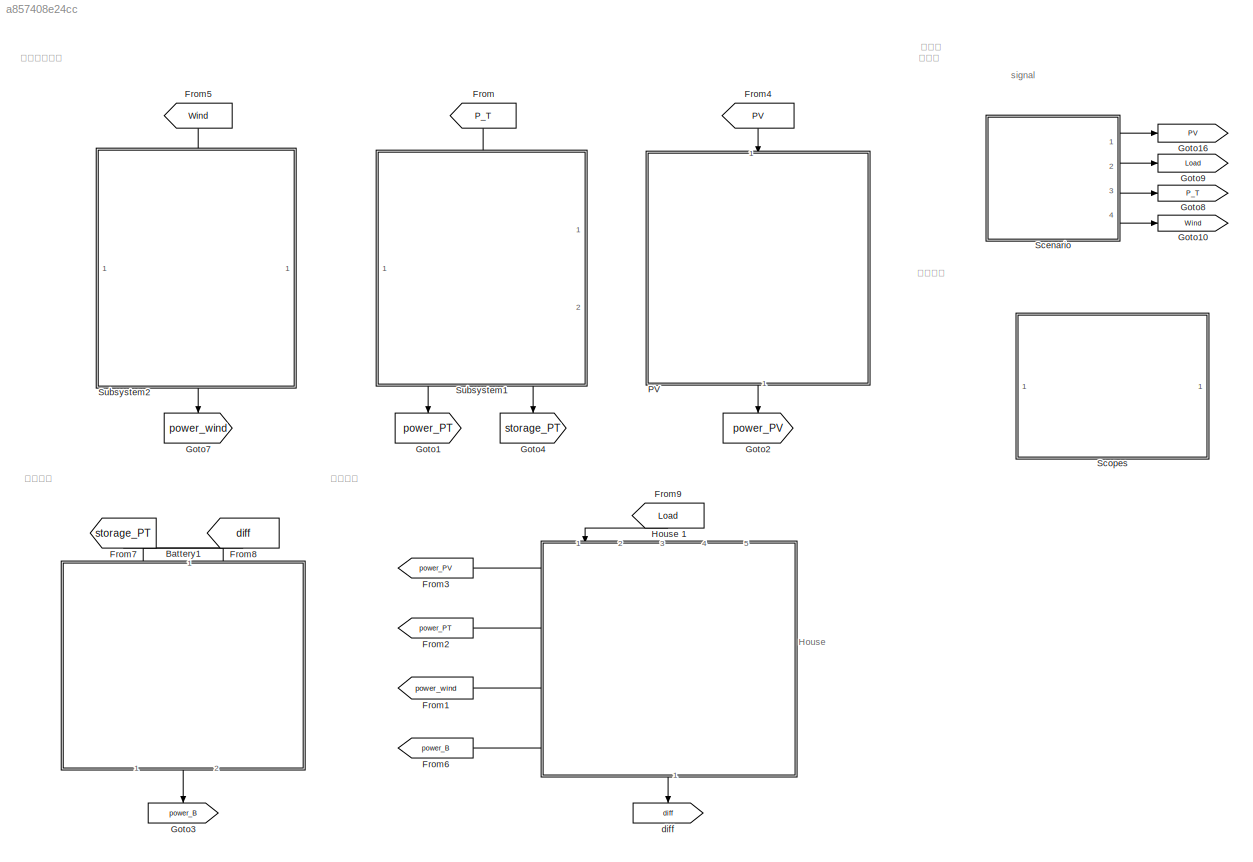
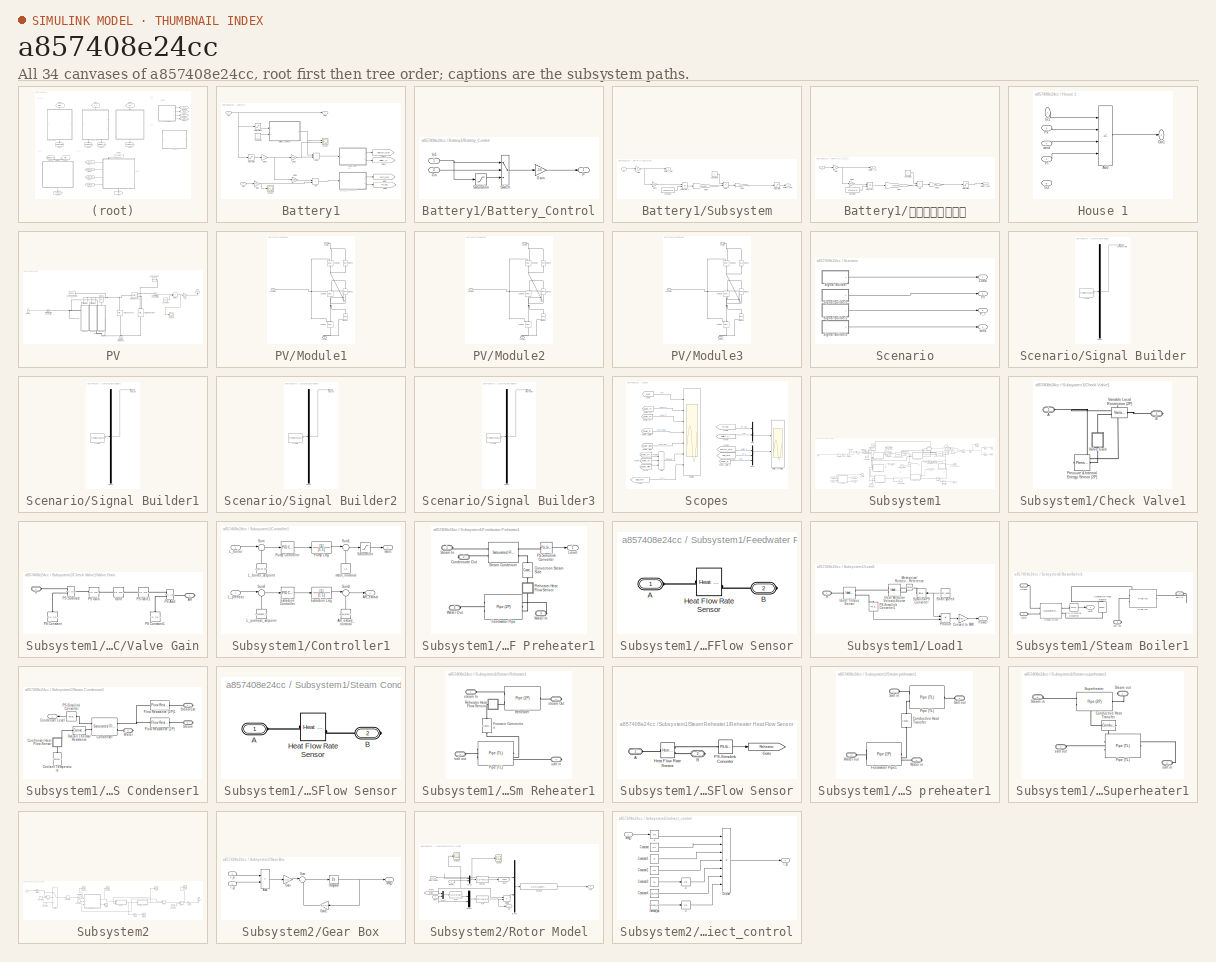
[diagram: thumbnail index - all 34 canvases of the model, root first then tree order]
MODEL slx_a857408e24cc
KIND model
CONFIG AbsTol = auto
CONFIG EnableMultiTasking = off
CONFIG FixedStep = auto
CONFIG MaxStep = auto
CONFIG MinStep = auto
CONFIG RelTol = 2e-3
CONFIG SampleTimeConstraint = Unconstrained
CONFIG SolverName = ode23t
CONFIG StartTime = 50
CONFIG StopTime = 86400
BLOCK [SubSystem] Battery1
  NameLocation = top
  PortSchema = {"entries":[{"content":{"sides":[{"content":{"connectorIds":["Out1"]},"type":"ConnectorPlacement.EquallySpacedRectSide","uuid":"05c2548f-6c73-4ad2-8cde-96a031eb1ece"},{"content":{"connectorIds":["In1","In2"],"side":"RIGHT"},"type":"ConnectorPlacement.EquallySpacedRectSide","uuid":"3f8619ba-0339-4565-87a2-5b86a019b0be"},{"content":{"connectorIds":[],"side":"TOP"},"type":"ConnectorPlacement.EquallyS...<+246ch>
  Ports = [2, 1]
  RequestExecContextInheritance = off
BLOCK [Sum] Battery1/Add
  IconShape = rectangular
  Ports = [2, 1]
BLOCK [Sum] Battery1/Add1
  IconShape = rectangular
  Ports = [2, 1]
BLOCK [SubSystem] Battery1/Battery_Control
  Ports = [2, 1]
  RequestExecContextInheritance = off
BLOCK [Gain] Battery1/Battery_Control/Gain
  Gain = -1.6
BLOCK [Inport] Battery1/Battery_Control/In1
BLOCK [Inport] Battery1/Battery_Control/On
  Port = 2
BLOCK [Outport] Battery1/Battery_Control/P
  InitialOutput = 0
  OutputWhenDisabled = reset
  VectorParamsAs1DForOutWhenUnconnected = off
BLOCK [Saturate] Battery1/Battery_Control/Saturation
  LowerLimit = -50
  UpperLimit = 0
BLOCK [Switch] Battery1/Battery_Control/Switch
  InputSameDT = off
  SaturateOnIntegerOverflow = off
  Threshold = 0.5
BLOCK [Constant] Battery1/Constant2
BLOCK [Gain] Battery1/Gain
  Gain = 0.8
BLOCK [Gain] Battery1/Gain1
  Gain = 0.12
BLOCK [Gain] Battery1/Gain2
  Gain = 0.88
BLOCK [Gain] Battery1/Gain3
  Gain = -1
BLOCK [Goto] Battery1/Goto1
  GotoTag = SOC_MW
  TagVisibility = global
BLOCK [Goto] Battery1/Goto15
  GotoTag = Battery_MW
  TagVisibility = global
BLOCK [Goto] Battery1/Goto17
  GotoTag = Battery_SOC
  TagVisibility = global
BLOCK [Goto] Battery1/Goto2
  GotoTag = PT_SOC
  TagVisibility = global
BLOCK [Inport] Battery1/In1
BLOCK [Inport] Battery1/In2
  Port = 2
BLOCK [Outport] Battery1/Out1
BLOCK [Saturate] Battery1/Saturation
  LowerLimit = 0
  UpperLimit = 100
BLOCK [Saturate] Battery1/Saturation1
  LowerLimit = -100
  UpperLimit = 0
BLOCK [Scope] Battery1/Scope
  Floating = off
  NumInputPorts = 2
  Ports = [2]
  ScopeSpecificationString = Simulink.scopes.TimeScopeBlockCfg('CurrentConfiguration', extmgr.ConfigurationSet(extmgr.Configuration('Core','General UI',true),extmgr.Configuration('Core','Source UI',true),extmgr.Configuration('Sources','WiredSimulink',true,'DataLoggingVariableName','ScopeData2'),extmgr.Configuration('Visuals','Time Domain',true,'SerializedDisplays',{struct('MinYLimReal','-5.17262','MaxYLimReal','15.15663','YLa...<+1417ch>
BLOCK [Scope] Battery1/Scope1
  Floating = off
  NumInputPorts = 1
  Ports = [1]
  ScopeSpecificationString = Simulink.scopes.TimeScopeBlockCfg('CurrentConfiguration', extmgr.ConfigurationSet(extmgr.Configuration('Core','General UI',true),extmgr.Configuration('Core','Source UI',true),extmgr.Configuration('Sources','WiredSimulink',true,'DataLoggingVariableName','ScopeData4'),extmgr.Configuration('Visuals','Time Domain',true,'SerializedDisplays',{struct('MinYLimReal','-2.01726','MaxYLimReal','18.18059','YLa...<+1433ch>
BLOCK [SubSystem] Battery1/Subsystem
  Ports = [1, 2]
  RequestExecContextInheritance = off
BLOCK [Sum] Battery1/Subsystem/Add
  IconShape = rectangular
  Inputs = +-
  Ports = [2, 1]
BLOCK [Outport] Battery1/Subsystem/Battery_MW
  VectorParamsAs1DForOutWhenUnconnected = off
BLOCK [Outport] Battery1/Subsystem/Battery_SOC
  Port = 2
  VectorParamsAs1DForOutWhenUnconnected = off
BLOCK [Constant] Battery1/Subsystem/Constant
  Value = MWh*0.8
BLOCK [Constant] Battery1/Subsystem/Constant1
BLOCK [Gain] Battery1/Subsystem/Gain
  Gain = -1
BLOCK [Gain] Battery1/Subsystem/Gain1
  Gain = 1/3600
BLOCK [Gain] Battery1/Subsystem/Gain3
  Gain = 1/MWh
BLOCK [Gain] Battery1/Subsystem/Gain8
  Gain = 100
BLOCK [Inport] Battery1/Subsystem/In1
BLOCK [Integrator] Battery1/Subsystem/Integrator1
  InitialConditionSource = external
  LowerSaturationLimit = 0
  Ports = [2, 1]
  UpperSaturationLimit = 36000
BLOCK [Saturate] Battery1/Subsystem/Saturation
  LowerLimit = 0
  UpperLimit = 100
BLOCK [SubSystem] Battery1/热盐储能（电池）
  Ports = [1, 2]
  RequestExecContextInheritance = off
BLOCK [Sum] Battery1/热盐储能（电池）/Add
  IconShape = rectangular
  Inputs = +-
  Ports = [2, 1]
BLOCK [Outport] Battery1/热盐储能（电池）/Battery_Ah
  VectorParamsAs1DForOutWhenUnconnected = off
BLOCK [Outport] Battery1/热盐储能（电池）/Battery_SOC
  Port = 2
  VectorParamsAs1DForOutWhenUnconnected = off
BLOCK [Constant] Battery1/热盐储能（电池）/Constant
  Value = MWh*0.8
BLOCK [Constant] Battery1/热盐储能（电池）/Constant1
BLOCK [Gain] Battery1/热盐储能（电池）/Gain
  Gain = -1
BLOCK [Gain] Battery1/热盐储能（电池）/Gain1
  Gain = 1/3600
BLOCK [Gain] Battery1/热盐储能（电池）/Gain3
  Gain = 1/MWh
BLOCK [Gain] Battery1/热盐储能（电池）/Gain8
  Gain = 100
BLOCK [Integrator] Battery1/热盐储能（电池）/Integrator1
  InitialConditionSource = external
  LowerSaturationLimit = 0
  Ports = [2, 1]
  UpperSaturationLimit = 36000
BLOCK [Inport] Battery1/热盐储能（电池）/P
BLOCK [Saturate] Battery1/热盐储能（电池）/Saturation
  LowerLimit = 0
  UpperLimit = 100
BLOCK [From] From
  GotoTag = P_T
  NameLocation = left
  TagVisibility = global
BLOCK [From] From1
  GotoTag = power_wind
  TagVisibility = global
BLOCK [From] From2
  GotoTag = power_PT
  TagVisibility = global
BLOCK [From] From3
  GotoTag = power_PV
  TagVisibility = global
BLOCK [From] From4
  GotoTag = PV
  NameLocation = left
  TagVisibility = global
BLOCK [From] From5
  GotoTag = Wind
  NameLocation = left
  TagVisibility = global
BLOCK [From] From6
  GotoTag = power_B
  TagVisibility = global
BLOCK [From] From7
  GotoTag = storage_PT
  NameLocation = left
  TagVisibility = global
BLOCK [From] From8
  GotoTag = diff
  NameLocation = left
  TagVisibility = global
BLOCK [From] From9
  GotoTag = Load
  NameLocation = left
  TagVisibility = global
BLOCK [Goto] Goto1
  GotoTag = power_PT
  NameLocation = left
  TagVisibility = global
BLOCK [Goto] Goto10
  GotoTag = Wind
  TagVisibility = global
BLOCK [Goto] Goto16
  GotoTag = PV
  TagVisibility = global
BLOCK [Goto] Goto2
  GotoTag = power_PV
  NameLocation = left
  TagVisibility = global
BLOCK [Goto] Goto3
  GotoTag = power_B
  NameLocation = left
  TagVisibility = global
BLOCK [Goto] Goto4
  GotoTag = storage_PT
  NameLocation = left
  TagVisibility = global
BLOCK [Goto] Goto7
  GotoTag = power_wind
  NameLocation = left
  TagVisibility = global
BLOCK [Goto] Goto8
  GotoTag = P_T
  TagVisibility = global
BLOCK [Goto] Goto9
  GotoTag = Load
  TagVisibility = global
BLOCK [SubSystem] House 1
  NameLocation = right
  PortSchema = {"entries":[{"content":{"sides":[{"content":{"connectorIds":["In1"]},"type":"ConnectorPlacement.EquallySpacedRectSide","uuid":"1f82580e-69c8-4404-97d4-bdade71a7aaa"},{"content":{"connectorIds":["Out1"],"side":"RIGHT"},"type":"ConnectorPlacement.EquallySpacedRectSide","uuid":"d3ab0e72-8b74-4e26-8e7a-6dffaf4259d2"},{"content":{"connectorIds":["In2","In3","In4","In5"],"side":"TOP"},"type":"ConnectorP...<+263ch>
  Ports = [5, 1]
  RequestExecContextInheritance = off
BLOCK [Sum] House 1/Add
  IconShape = rectangular
  Inputs = +---
  Ports = [4, 1]
BLOCK [Inport] House 1/In1
BLOCK [Inport] House 1/In2
  Port = 5
BLOCK [Outport] House 1/Out1
  NameLocation = top
  VectorParamsAs1DForOutWhenUnconnected = off
BLOCK [Inport] House 1/PT
  Port = 3
BLOCK [Inport] House 1/PV
  Port = 2
BLOCK [Inport] House 1/wind
  Port = 4
BLOCK [SubSystem] PV
  NameLocation = left
  Ports = [1, 1]
  RequestExecContextInheritance = off
BLOCK [Constant] PV/Constant
  Value = 6.86
BLOCK [Reference] PV/Current Sensor  REF=fl_lib/Electrical/Electrical Sensors/Current Sensor
  Ports = [0, 0, 0, 0, 0, 1, 2]
  SourceBlock = fl_lib/Electrical/Electrical Sensors/Current Sensor
  SourceProductBaseCode = SS
  SourceType = Current Sensor
BLOCK [Reference] PV/Diode1  REF=ee_lib/Semiconductors &
Converters/Diode
  NameLocation = right
  Ports = [0, 0, 0, 0, 0, 1, 1]
  SourceBlock = ee_lib/Semiconductors &\nConverters/Diode
  SourceProductBaseCode = PS
  SourceType = Diode
BLOCK [Reference] PV/Diode2  REF=ee_lib/Semiconductors &
Converters/Diode
  NameLocation = right
  Ports = [0, 0, 0, 0, 0, 1, 1]
  SourceBlock = ee_lib/Semiconductors &\nConverters/Diode
  SourceProductBaseCode = PS
  SourceType = Diode
BLOCK [Reference] PV/Diode3  REF=ee_lib/Semiconductors &
Converters/Diode
  NameLocation = right
  Ports = [0, 0, 0, 0, 0, 1, 1]
  SourceBlock = ee_lib/Semiconductors &\nConverters/Diode
  SourceProductBaseCode = PS
  SourceType = Diode
BLOCK [Product] PV/Divide
  Inputs = */
  Ports = [2, 1]
BLOCK [Reference] PV/Electrical Reference  REF=fl_lib/Electrical/Electrical Elements/Electrical Reference
  NameLocation = right
  Ports = [0, 0, 0, 0, 0, 1]
  SourceBlock = fl_lib/Electrical/Electrical Elements/Electrical Reference
  SourceProductBaseCode = SS
  SourceType = Electrical Reference
BLOCK [Gain] PV/Gain
  Gain = 4.5
BLOCK [SubSystem] PV/Module1
  PortSchema = {"entries":[{"content":{"sides":[{"content":{"connectorIds":["LConn1"]},"type":"ConnectorPlacement.EquallySpacedRectSide","uuid":"ab66651e-609a-459c-9d92-4a21cc3a8387"},{"content":{"connectorIds":[],"side":"RIGHT"},"type":"ConnectorPlacement.EquallySpacedRectSide","uuid":"9128ca8b-245e-4b88-89cc-48151ac1f427"},{"content":{"connectorIds":["LConn2"],"side":"TOP"},"type":"ConnectorPlacement.EquallySp...<+397ch>  <repeated x3 — deduplicated; at blocks: Module1, Module2, Module3>
  Ports = [0, 0, 0, 0, 0, 2, 1]
  RequestExecContextInheritance = off
BLOCK [Reference] PV/Module1/Diode2  REF=fl_lib/Electrical/Electrical Elements/Diode
  NameLocation = right
  Ports = [0, 0, 0, 0, 0, 1, 1]
  SourceBlock = fl_lib/Electrical/Electrical Elements/Diode
  SourceProductBaseCode = SS
  SourceType = Diode
BLOCK [Reference] PV/Module1/Diode3  REF=fl_lib/Electrical/Electrical Elements/Diode
  NameLocation = right
  Ports = [0, 0, 0, 0, 0, 1, 1]
  SourceBlock = fl_lib/Electrical/Electrical Elements/Diode
  SourceProductBaseCode = SS
  SourceType = Diode
BLOCK [Reference] PV/Module1/Diode4  REF=fl_lib/Electrical/Electrical Elements/Diode
  NameLocation = right
  Ports = [0, 0, 0, 0, 0, 1, 1]
  SourceBlock = fl_lib/Electrical/Electrical Elements/Diode
  SourceProductBaseCode = SS
  SourceType = Diode
BLOCK [Reference] PV/Module1/Solar Cell  REF=ee_lib/Sources/Solar Cell
  NameLocation = right
  Ports = [0, 0, 0, 0, 0, 2, 1]
  SourceBlock = ee_lib/Sources/Solar Cell
  SourceProductBaseCode = PS
  SourceType = Solar Cell
BLOCK [Reference] PV/Module1/Solar Cell1  REF=ee_lib/Sources/Solar Cell
  NameLocation = right
  Ports = [0, 0, 0, 0, 0, 2, 1]
  SourceBlock = ee_lib/Sources/Solar Cell
  SourceProductBaseCode = PS
  SourceType = Solar Cell
BLOCK [Reference] PV/Module1/Solar Cell2  REF=ee_lib/Sources/Solar Cell
  NameLocation = right
  Ports = [0, 0, 0, 0, 0, 2, 1]
  SourceBlock = ee_lib/Sources/Solar Cell
  SourceProductBaseCode = PS
  SourceType = Solar Cell
BLOCK [PMIOPort] PV/Module1/constant
  Side = Left
BLOCK [PMIOPort] PV/Module1/negative
  Port = 3
  Side = Right
BLOCK [PMIOPort] PV/Module1/positive
  Port = 2
  Side = Left
BLOCK [SubSystem] PV/Module2
  Ports = [0, 0, 0, 0, 0, 2, 1]
  RequestExecContextInheritance = off
BLOCK [Reference] PV/Module2/Diode2  REF=fl_lib/Electrical/Electrical Elements/Diode
  NameLocation = right
  Ports = [0, 0, 0, 0, 0, 1, 1]
  SourceBlock = fl_lib/Electrical/Electrical Elements/Diode
  SourceProductBaseCode = SS
  SourceType = Diode
BLOCK [Reference] PV/Module2/Diode3  REF=fl_lib/Electrical/Electrical Elements/Diode
  NameLocation = right
  Ports = [0, 0, 0, 0, 0, 1, 1]
  SourceBlock = fl_lib/Electrical/Electrical Elements/Diode
  SourceProductBaseCode = SS
  SourceType = Diode
BLOCK [Reference] PV/Module2/Diode4  REF=fl_lib/Electrical/Electrical Elements/Diode
  NameLocation = right
  Ports = [0, 0, 0, 0, 0, 1, 1]
  SourceBlock = fl_lib/Electrical/Electrical Elements/Diode
  SourceProductBaseCode = SS
  SourceType = Diode
BLOCK [Reference] PV/Module2/Solar Cell  REF=ee_lib/Sources/Solar Cell
  NameLocation = right
  Ports = [0, 0, 0, 0, 0, 2, 1]
  SourceBlock = ee_lib/Sources/Solar Cell
  SourceProductBaseCode = PS
  SourceType = Solar Cell
BLOCK [Reference] PV/Module2/Solar Cell1  REF=ee_lib/Sources/Solar Cell
  NameLocation = right
  Ports = [0, 0, 0, 0, 0, 2, 1]
  SourceBlock = ee_lib/Sources/Solar Cell
  SourceProductBaseCode = PS
  SourceType = Solar Cell
BLOCK [Reference] PV/Module2/Solar Cell2  REF=ee_lib/Sources/Solar Cell
  NameLocation = right
  Ports = [0, 0, 0, 0, 0, 2, 1]
  SourceBlock = ee_lib/Sources/Solar Cell
  SourceProductBaseCode = PS
  SourceType = Solar Cell
BLOCK [PMIOPort] PV/Module2/constant
  Side = Left
BLOCK [PMIOPort] PV/Module2/negative
  Port = 3
  Side = Right
BLOCK [PMIOPort] PV/Module2/positive
  Port = 2
  Side = Left
BLOCK [SubSystem] PV/Module3
  Ports = [0, 0, 0, 0, 0, 2, 1]
  RequestExecContextInheritance = off
BLOCK [Reference] PV/Module3/Diode2  REF=fl_lib/Electrical/Electrical Elements/Diode
  NameLocation = right
  Ports = [0, 0, 0, 0, 0, 1, 1]
  SourceBlock = fl_lib/Electrical/Electrical Elements/Diode
  SourceProductBaseCode = SS
  SourceType = Diode
BLOCK [Reference] PV/Module3/Diode3  REF=fl_lib/Electrical/Electrical Elements/Diode
  NameLocation = right
  Ports = [0, 0, 0, 0, 0, 1, 1]
  SourceBlock = fl_lib/Electrical/Electrical Elements/Diode
  SourceProductBaseCode = SS
  SourceType = Diode
BLOCK [Reference] PV/Module3/Diode4  REF=fl_lib/Electrical/Electrical Elements/Diode
  NameLocation = right
  Ports = [0, 0, 0, 0, 0, 1, 1]
  SourceBlock = fl_lib/Electrical/Electrical Elements/Diode
  SourceProductBaseCode = SS
  SourceType = Diode
BLOCK [Reference] PV/Module3/Solar Cell  REF=ee_lib/Sources/Solar Cell
  NameLocation = right
  Ports = [0, 0, 0, 0, 0, 2, 1]
  SourceBlock = ee_lib/Sources/Solar Cell
  SourceProductBaseCode = PS
  SourceType = Solar Cell
BLOCK [Reference] PV/Module3/Solar Cell1  REF=ee_lib/Sources/Solar Cell
  NameLocation = right
  Ports = [0, 0, 0, 0, 0, 2, 1]
  SourceBlock = ee_lib/Sources/Solar Cell
  SourceProductBaseCode = PS
  SourceType = Solar Cell
BLOCK [Reference] PV/Module3/Solar Cell2  REF=ee_lib/Sources/Solar Cell
  NameLocation = right
  Ports = [0, 0, 0, 0, 0, 2, 1]
  SourceBlock = ee_lib/Sources/Solar Cell
  SourceProductBaseCode = PS
  SourceType = Solar Cell
BLOCK [PMIOPort] PV/Module3/constant
  Side = Left
BLOCK [PMIOPort] PV/Module3/negative
  Port = 3
  Side = Right
BLOCK [PMIOPort] PV/Module3/positive
  Port = 2
  Side = Left
BLOCK [Outport] PV/Out1
  NameLocation = right
  VectorParamsAs1DForOutWhenUnconnected = off
BLOCK [Reference] PV/PS Constant1  REF=fl_lib/Physical Signals/Sources/PS Constant
  Ports = [0, 0, 0, 0, 0, 0, 1]
  SourceBlock = fl_lib/Physical Signals/Sources/PS Constant
  SourceProductBaseCode = SS
  SourceType = PS Constant
BLOCK [Reference] PV/PS-Simulink Converter1  REF=nesl_utility/PS-Simulink
Converter
  Ports = [0, 1, 0, 0, 0, 1]
  SourceBlock = nesl_utility/PS-Simulink\nConverter
  SourceProductBaseCode = PW,SS
  SourceType = PS-Simulink\nConverter
BLOCK [Scope] PV/Scope
  Floating = off
  NumInputPorts = 1
  Ports = [1]
  ScopeSpecificationString = Simulink.scopes.TimeScopeBlockCfg('CurrentConfiguration', extmgr.ConfigurationSet(extmgr.Configuration('Core','General UI',true),extmgr.Configuration('Core','Source UI',true),extmgr.Configuration('Sources','WiredSimulink',true,'DataLoggingVariableName','ScopeData8'),extmgr.Configuration('Visuals','Time Domain',true,'SerializedDisplays',{struct('MinYLimReal','-0.12351','MaxYLimReal','1.11163','YLab...<+1413ch>
BLOCK [Reference] PV/Simulink-PS Converter  REF=nesl_utility/Simulink-PS
Converter
  Ports = [1, 0, 0, 0, 0, 0, 1]
  SourceBlock = nesl_utility/Simulink-PS\nConverter
  SourceProductBaseCode = PW,SS
  SourceType = Simulink-PS\nConverter
BLOCK [Reference] PV/Solver Configuration  REF=nesl_utility/Solver
Configuration
  Ports = [0, 0, 0, 0, 0, 0, 1]
  SourceBlock = nesl_utility/Solver\nConfiguration
  SourceProductBaseCode = PW,SS
  SourceType = Solver\nConfiguration
BLOCK [Reference] PV/Variable Resistor  REF=fl_lib/Electrical/Electrical Elements/Variable Resistor
  NameLocation = left
  Ports = [0, 0, 0, 0, 0, 2, 1]
  SourceBlock = fl_lib/Electrical/Electrical Elements/Variable Resistor
  SourceProductBaseCode = SS
  SourceType = Variable Resistor
BLOCK [Reference] PV/Voltage Sensor  REF=fl_lib/Electrical/Electrical Sensors/Voltage Sensor
  NameLocation = right
  Ports = [0, 0, 0, 0, 0, 1, 2]
  SourceBlock = fl_lib/Electrical/Electrical Sensors/Voltage Sensor
  SourceProductBaseCode = SS
  SourceType = Voltage Sensor
BLOCK [Inport] PV/input0
BLOCK [SubSystem] Scenario
  Ports = [0, 4]
  RequestExecContextInheritance = off
BLOCK [Outport] Scenario/Load
  Port = 2
  VectorParamsAs1DForOutWhenUnconnected = off
BLOCK [Outport] Scenario/PV
  VectorParamsAs1DForOutWhenUnconnected = off
BLOCK [Outport] Scenario/P_T
  Port = 3
BLOCK [SubSystem] Scenario/Signal Builder
  ClipboardFcn = sigbuilder_block('clipboard');
  CloseFcn = sigbuilder_block('close');
  ContinueFcn = sigbuilder_block('continue');
  CopyFcn = sigbuilder_block('copy');
  DeleteFcn = sigbuilder_block('delete');
  LoadFcn = sigbuilder_block('load');
  MaskHideContents = on
  ModelCloseFcn = sigbuilder_block('modelClose');
  NameChangeFcn = sigbuilder_block('namechange');
  OpenFcn = sigbuilder_block('open',[435.6 90.6 550.8 400.2 ]);
  PauseFcn = sigbuilder_block('pause');
  Ports = [0, 1]
  PreSaveFcn = sigbuilder_block('preSave');
  RequestExecContextInheritance = off
  StartFcn = sigbuilder_block('start');
  StopFcn = sigbuilder_block('stop');
  Tag = STV Subsys
BLOCK [Demux] Scenario/Signal Builder/Demux
  DisplayOption = none
  Outputs = 1
  Ports = [1, 1]
  Tag = STV Demux
BLOCK [FromWorkspace] Scenario/Signal Builder/FromWs
  Tag = STV FromWs
  VariableName = tuvar
BLOCK [Outport] Scenario/Signal Builder/demand(MW)
  Tag = STV Outport
BLOCK [SubSystem] Scenario/Signal Builder1
  ClipboardFcn = sigbuilder_block('clipboard');
  CloseFcn = sigbuilder_block('close');
  ContinueFcn = sigbuilder_block('continue');
  CopyFcn = sigbuilder_block('copy');
  DeleteFcn = sigbuilder_block('delete');
  LoadFcn = sigbuilder_block('load');
  MaskHideContents = on
  ModelCloseFcn = sigbuilder_block('modelClose');
  NameChangeFcn = sigbuilder_block('namechange');
  OpenFcn = sigbuilder_block('open',[437.6 199.2 550.4 400 ]);
  PauseFcn = sigbuilder_block('pause');
  Ports = [0, 1]
  PreSaveFcn = sigbuilder_block('preSave');
  RequestExecContextInheritance = off
  StartFcn = sigbuilder_block('start');
  StopFcn = sigbuilder_block('stop');
  Tag = STV Subsys
BLOCK [Outport] Scenario/Signal Builder1/DNI_Avg
  Tag = STV Outport
BLOCK [Demux] Scenario/Signal Builder1/Demux
  DisplayOption = none
  Outputs = 1
  Ports = [1, 1]
  Tag = STV Demux
BLOCK [FromWorkspace] Scenario/Signal Builder1/FromWs
  Tag = STV FromWs
  VariableName = tuvar
BLOCK [SubSystem] Scenario/Signal Builder2
  ClipboardFcn = sigbuilder_block('clipboard');
  CloseFcn = sigbuilder_block('close');
  ContinueFcn = sigbuilder_block('continue');
  CopyFcn = sigbuilder_block('copy');
  DeleteFcn = sigbuilder_block('delete');
  LoadFcn = sigbuilder_block('load');
  MaskHideContents = on
  ModelCloseFcn = sigbuilder_block('modelClose');
  NameChangeFcn = sigbuilder_block('namechange');
  OpenFcn = sigbuilder_block('open',[154.8 102 550.8 400.2 ]);
  PauseFcn = sigbuilder_block('pause');
  Ports = [0, 1]
  PreSaveFcn = sigbuilder_block('preSave');
  RequestExecContextInheritance = off
  StartFcn = sigbuilder_block('start');
  StopFcn = sigbuilder_block('stop');
  Tag = STV Subsys
BLOCK [Outport] Scenario/Signal Builder2/DNI_Avg
  Tag = STV Outport
BLOCK [Demux] Scenario/Signal Builder2/Demux
  DisplayOption = none
  Outputs = 1
  Ports = [1, 1]
  Tag = STV Demux
BLOCK [FromWorkspace] Scenario/Signal Builder2/FromWs
  Tag = STV FromWs
  VariableName = tuvar
BLOCK [SubSystem] Scenario/Signal Builder3
  ClipboardFcn = sigbuilder_block('clipboard');
  CloseFcn = sigbuilder_block('close');
  ContinueFcn = sigbuilder_block('continue');
  CopyFcn = sigbuilder_block('copy');
  DeleteFcn = sigbuilder_block('delete');
  LoadFcn = sigbuilder_block('load');
  MaskHideContents = on
  ModelCloseFcn = sigbuilder_block('modelClose');
  NameChangeFcn = sigbuilder_block('namechange');
  OpenFcn = sigbuilder_block('open',[-19.2 -1.8 550.8 400.2 ]);
  PauseFcn = sigbuilder_block('pause');
  Ports = [0, 1]
  PreSaveFcn = sigbuilder_block('preSave');
  RequestExecContextInheritance = off
  StartFcn = sigbuilder_block('start');
  StopFcn = sigbuilder_block('stop');
  Tag = STV Subsys
BLOCK [Demux] Scenario/Signal Builder3/Demux
  DisplayOption = none
  Outputs = 1
  Ports = [1, 1]
  Tag = STV Demux
BLOCK [FromWorkspace] Scenario/Signal Builder3/FromWs
  Tag = STV FromWs
  VariableName = tuvar
BLOCK [Outport] Scenario/Signal Builder3/wind(km//h)
  Tag = STV Outport
BLOCK [Outport] Scenario/wind
  Port = 4
BLOCK [SubSystem] Scopes
  Ports = []
  RequestExecContextInheritance = off
BLOCK [Sum] Scopes/Add
  IconShape = rectangular
  Inputs = +++
  Ports = [3, 1]
BLOCK [Scope] Scopes/Battery condition
  Floating = off
  NumInputPorts = 2
  Ports = [2]
  ScopeSpecificationString = Simulink.scopes.TimeScopeBlockCfg('CurrentConfiguration', extmgr.ConfigurationSet(extmgr.Configuration('Core','General UI',true,'FigureColor',[0 0 0]),extmgr.Configuration('Core','Source UI',true),extmgr.Configuration('Sources','WiredSimulink',true,'DataLoggingVariableName','ScopeData1','DataLoggingSaveFormat','StructureWithTime','DataLoggingDecimation','1','DataLoggingDecimateData',true),extmgr.C...<+2399ch>
BLOCK [From] Scopes/From
  GotoTag = SOC_MW
  TagVisibility = global
BLOCK [From] Scopes/From1
  GotoTag = power_wind
  TagVisibility = global
BLOCK [From] Scopes/From2
  GotoTag = Battery_MW
  TagVisibility = global
BLOCK [From] Scopes/From3
  GotoTag = SOC_MW
  TagVisibility = global
BLOCK [From] Scopes/From4
  GotoTag = power_PT
  TagVisibility = global
BLOCK [From] Scopes/From5
  GotoTag = power_PV
  TagVisibility = global
BLOCK [From] Scopes/From7
  GotoTag = Battery_SOC
  TagVisibility = global
BLOCK [From] Scopes/From8
  GotoTag = PT_SOC
  TagVisibility = global
BLOCK [From] Scopes/Load
  GotoTag = Load
  TagVisibility = global
BLOCK [Mux] Scopes/Mux
  DisplayOption = bar
  Inputs = 2
  Ports = [2, 1]
BLOCK [Mux] Scopes/Mux1
  DisplayOption = bar
  Inputs = 3
  Ports = [3, 1]
BLOCK [Scope] Scopes/POWER
  Floating = off
  NumInputPorts = 7
  Ports = [7]
  ScopeSpecificationString = Simulink.scopes.TimeScopeBlockCfg('CurrentConfiguration', extmgr.ConfigurationSet(extmgr.Configuration('Core','General UI',true),extmgr.Configuration('Core','Source UI',true),extmgr.Configuration('Sources','WiredSimulink',true,'DataLogging',true,'DataLoggingVariableName','ScopeData3','DataLoggingSaveFormat','StructureWithTime','DataLoggingDecimation','1','DataLoggingDecimateData',true),extmgr.Conf...<+1831ch>
BLOCK [From] Scopes/power_PT
  GotoTag = power_PT
  TagVisibility = global
BLOCK [From] Scopes/power_PV
  GotoTag = power_PV
  TagVisibility = global
BLOCK [From] Scopes/power_battery
  GotoTag = power_B
  TagVisibility = global
BLOCK [From] Scopes/power_battery1
  GotoTag = power_B
  TagVisibility = global
BLOCK [From] Scopes/power_wind
  GotoTag = power_wind
  TagVisibility = global
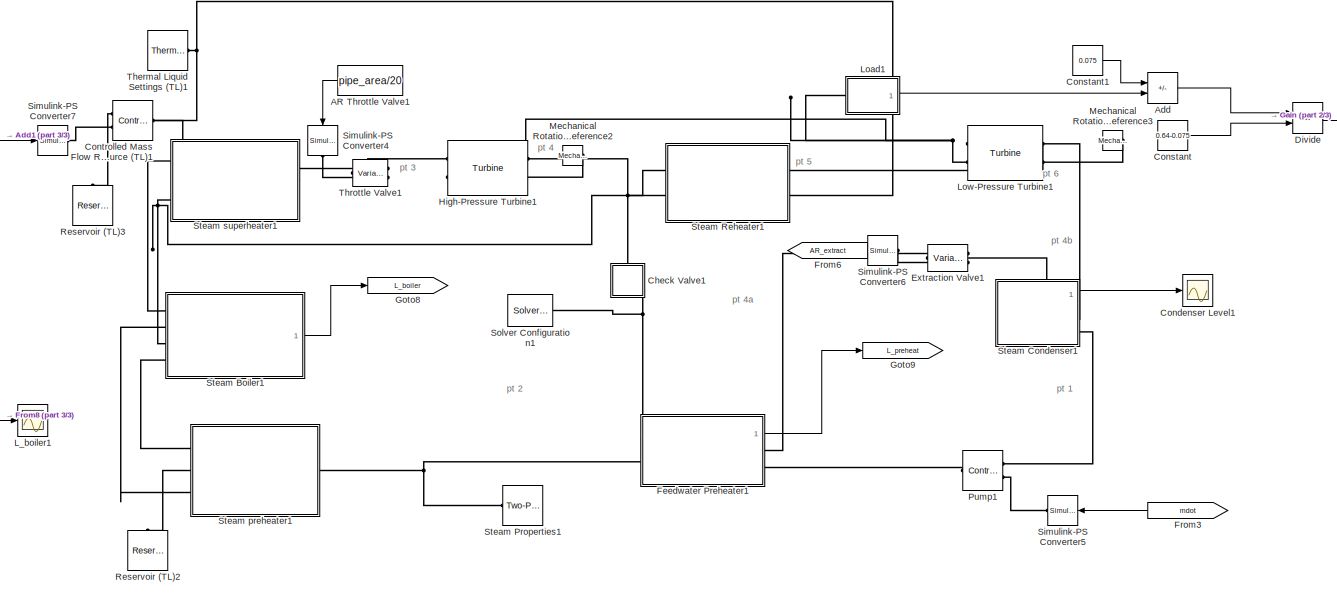
[diagram: Subsystem1 - part 1/3, center side, full height]
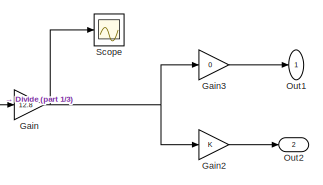
[diagram: Subsystem1 - part 2/3, top right region]
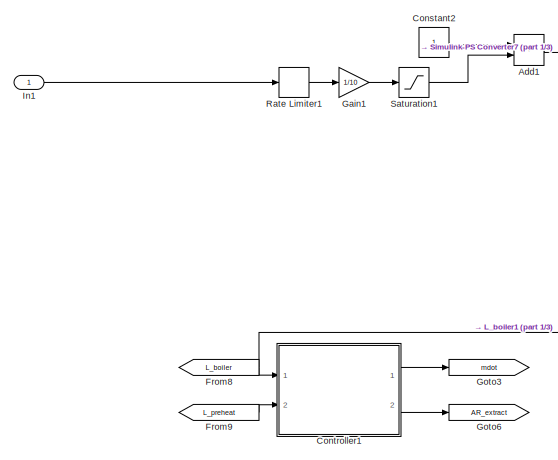
[diagram: Subsystem1 - part 3/3, middle left region]
BLOCK [SubSystem] Subsystem1
  PortSchema = {"entries":[{"content":{"sides":[{"content":{"connectorIds":[]},"type":"ConnectorPlacement.EquallySpacedRectSide","uuid":"dfb2b6ec-63a9-433b-a18e-5e353a5e5aa9"},{"content":{"connectorIds":[],"side":"RIGHT"},"type":"ConnectorPlacement.EquallySpacedRectSide","uuid":"c125b8e7-643b-4944-971c-4a5bf3b5a62f"},{"content":{"connectorIds":["In1"],"side":"TOP"},"type":"ConnectorPlacement.EquallySpacedRectSid...<+391ch>
  Ports = [1, 2]
  RequestExecContextInheritance = off
BLOCK [Constant] Subsystem1/AR Throttle Valve1
  NameLocation = right
  Value = pipe_area/20
BLOCK [Sum] Subsystem1/Add
  IconShape = rectangular
  Inputs = -+
  Ports = [2, 1]
BLOCK [Sum] Subsystem1/Add1
  IconShape = rectangular
  Ports = [2, 1]
BLOCK [SubSystem] Subsystem1/Check Valve1
  NameLocation = right
  Ports = [0, 0, 0, 0, 0, 1, 1]
  RequestExecContextInheritance = off
BLOCK [PMIOPort] Subsystem1/Check Valve1/A
  Side = Left
BLOCK [PMIOPort] Subsystem1/Check Valve1/B
  Port = 2
  Side = Right
BLOCK [Reference] Subsystem1/Check Valve1/Pressure & Internal Energy Sensor (2P)  REF=fl_lib/Two-Phase Fluid/Sensors/Pressure & Internal
Energy Sensor (2P)
  Ports = [0, 0, 0, 0, 0, 1, 3]
  SourceBlock = fl_lib/Two-Phase Fluid/Sensors/Pressure & Internal\nEnergy Sensor (2P)
  SourceProductName = Foundation Library
  SourceType = Pressure & Internal\nEnergy Sensor (2P)
BLOCK [SubSystem] Subsystem1/Check Valve1/Valve Gain
  NameLocation = right
  Ports = [0, 0, 0, 0, 0, 1, 1]
  RequestExecContextInheritance = off
BLOCK [PMIOPort] Subsystem1/Check Valve1/Valve Gain/AR
  Port = 2
  Side = Right
BLOCK [PMIOPort] Subsystem1/Check Valve1/Valve Gain/P
  Side = Left
BLOCK [Reference] Subsystem1/Check Valve1/Valve Gain/PS Add  REF=fl_lib/Physical Signals/Functions/PS Add
  Ports = [0, 0, 0, 0, 0, 2, 1]
  SourceBlock = fl_lib/Physical Signals/Functions/PS Add
  SourceProductName = Foundation Library
  SourceType = PS Add
BLOCK [Reference] Subsystem1/Check Valve1/Valve Gain/PS Constant  REF=fl_lib/Physical Signals/Sources/PS Constant
  NameLocation = right
  Ports = [0, 0, 0, 0, 0, 0, 1]
  SourceBlock = fl_lib/Physical Signals/Sources/PS Constant
  SourceProductName = Foundation Library
  SourceType = PS Constant
BLOCK [Reference] Subsystem1/Check Valve1/Valve Gain/PS Constant1  REF=fl_lib/Physical Signals/Sources/PS Constant
  NameLocation = right
  Ports = [0, 0, 0, 0, 0, 0, 1]
  SourceBlock = fl_lib/Physical Signals/Sources/PS Constant
  SourceProductName = Foundation Library
  SourceType = PS Constant
BLOCK [Reference] Subsystem1/Check Valve1/Valve Gain/PS Gain  REF=fl_lib/Physical Signals/Functions/PS Gain
  Ports = [0, 0, 0, 0, 0, 1, 1]
  SourceBlock = fl_lib/Physical Signals/Functions/PS Gain
  SourceProductName = Foundation Library
  SourceType = PS Gain
BLOCK [Reference] Subsystem1/Check Valve1/Valve Gain/PS Gain1  REF=fl_lib/Physical Signals/Functions/PS Gain
  Ports = [0, 0, 0, 0, 0, 1, 1]
  SourceBlock = fl_lib/Physical Signals/Functions/PS Gain
  SourceProductName = Foundation Library
  SourceType = PS Gain
BLOCK [Reference] Subsystem1/Check Valve1/Valve Gain/PS Subtract  REF=fl_lib/Physical Signals/Functions/PS Subtract
  Ports = [0, 0, 0, 0, 0, 2, 1]
  SourceBlock = fl_lib/Physical Signals/Functions/PS Subtract
  SourceProductName = Foundation Library
  SourceType = PS Subtract
BLOCK [Reference] Subsystem1/Check Valve1/Valve Gain/tanh  REF=fl_lib/Physical Signals/Functions/PS Math Function
  Ports = [0, 0, 0, 0, 0, 1, 1]
  SourceBlock = fl_lib/Physical Signals/Functions/PS Math Function
  SourceProductName = Foundation Library
  SourceType = PS Math Function
BLOCK [Reference] Subsystem1/Check Valve1/Variable Local Restriction (2P)  REF=fl_lib/Two-Phase Fluid/Elements/Variable Local
Restriction (2P)
  Ports = [0, 0, 0, 0, 0, 2, 1]
  SourceBlock = fl_lib/Two-Phase Fluid/Elements/Variable Local\nRestriction (2P)
  SourceProductName = Foundation Library
  SourceType = Variable Local\nRestriction (2P)
BLOCK [Scope] Subsystem1/Condenser Level1
  Floating = off
  NumInputPorts = 1
  Ports = [1]
  ScopeSpecificationString = Simulink.scopes.TimeScopeBlockCfg('CurrentConfiguration', extmgr.ConfigurationSet(extmgr.Configuration('Core','General UI',true),extmgr.Configuration('Core','Source UI',true),extmgr.Configuration('Sources','WiredSimulink',true,'DataLoggingVariableName','ScopeData1'),extmgr.Configuration('Visuals','Time Domain',true,'SerializedDisplays',{struct('MinYLimReal','0.1468','MaxYLimReal','0.20591','YLabel...<+1399ch>
BLOCK [Constant] Subsystem1/Constant
  Value = 0.64-0.075
BLOCK [Constant] Subsystem1/Constant1
  Value = 0.075
BLOCK [Constant] Subsystem1/Constant2
BLOCK [Reference] Subsystem1/Controlled Mass Flow Rate Source (TL)1  REF=fl_lib/Thermal Liquid/Sources/Controlled Mass Flow
Rate Source (TL)
  Ports = [0, 0, 0, 0, 0, 2, 1]
  SourceBlock = fl_lib/Thermal Liquid/Sources/Controlled Mass Flow\nRate Source (TL)
  SourceProductBaseCode = SS
  SourceType = Controlled Mass Flow\nRate Source (TL)
BLOCK [SubSystem] Subsystem1/Controller1
  Ports = [2, 2]
  RequestExecContextInheritance = off
BLOCK [Outport] Subsystem1/Controller1/AR_extract
  Port = 2
  VectorParamsAs1DForOutWhenUnconnected = off
BLOCK [Constant] Subsystem1/Controller1/AR_extract_nominal
  NameLocation = right
  Value = pipe_area / 500
BLOCK [Reference] Subsystem1/Controller1/Extraction Controller  REF=pid_lib/PID Controller
  Ports = [1, 1]
  SourceBlock = pid_lib/PID Controller
  SourceProductBaseCode = SL
  SourceType = PID 1dof
BLOCK [TransferFcn] Subsystem1/Controller1/Extraction Lag
  Denominator = [1 1]
BLOCK [Inport] Subsystem1/Controller1/L_boiler
BLOCK [Constant] Subsystem1/Controller1/L_boiler_setpoint
  NameLocation = right
  Value = L_boiler_setpoint
BLOCK [Inport] Subsystem1/Controller1/L_preheat
  Port = 2
BLOCK [Constant] Subsystem1/Controller1/L_preheat_setpoint
  NameLocation = right
  Value = L_preheat_setpoint
BLOCK [Reference] Subsystem1/Controller1/Pump Controller  REF=pid_lib/PID Controller
  Ports = [1, 1]
  SourceBlock = pid_lib/PID Controller
  SourceProductBaseCode = SL
  SourceType = PID 1dof
BLOCK [TransferFcn] Subsystem1/Controller1/Pump Lag
  Denominator = [1 1]
BLOCK [Saturate] Subsystem1/Controller1/Saturation
  LowerLimit = 0
  UpperLimit = 30
BLOCK [Sum] Subsystem1/Controller1/Sum
  Inputs = |-+
  Ports = [2, 1]
BLOCK [Sum] Subsystem1/Controller1/Sum1
  Inputs = |++
  Ports = [2, 1]
BLOCK [Sum] Subsystem1/Controller1/Sum2
  Inputs = |-+
  Ports = [2, 1]
BLOCK [Sum] Subsystem1/Controller1/Sum3
  Inputs = |++
  Ports = [2, 1]
BLOCK [Outport] Subsystem1/Controller1/mdot
  VectorParamsAs1DForOutWhenUnconnected = off
BLOCK [Constant] Subsystem1/Controller1/mdot_nominal
  NameLocation = right
  Value = 1.5
BLOCK [Product] Subsystem1/Divide
  Inputs = */
  Ports = [2, 1]
BLOCK [Reference] Subsystem1/Extraction Valve1  REF=fl_lib/Two-Phase Fluid/Elements/Variable Local
Restriction (2P)
  Ports = [0, 0, 0, 0, 0, 2, 1]
  SourceBlock = fl_lib/Two-Phase Fluid/Elements/Variable Local\nRestriction (2P)
  SourceProductName = Foundation Library
  SourceType = Variable Local\nRestriction (2P)
BLOCK [SubSystem] Subsystem1/Feedwater Preheater1
  Ports = [0, 1, 0, 0, 0, 2, 2]
  RequestExecContextInheritance = off
  Tag = PublishSubsystem
BLOCK [PMIOPort] Subsystem1/Feedwater Preheater1/Condensate Out
  Port = 2
  Side = Right
BLOCK [Reference] Subsystem1/Feedwater Preheater1/Convection Steam Side  REF=fl_lib/Thermal/Thermal Elements/Convective Heat
Transfer
  NameLocation = right
  Ports = [0, 0, 0, 0, 0, 1, 1]
  SourceBlock = fl_lib/Thermal/Thermal Elements/Convective Heat\nTransfer
  SourceProductName = Foundation Library
  SourceType = Convective Heat\nTransfer
BLOCK [Reference] Subsystem1/Feedwater Preheater1/Feedwater Pipe  REF=fl_lib/Two-Phase Fluid/Elements/Pipe (2P)
  Ports = [0, 0, 0, 0, 0, 2, 1]
  SourceBlock = fl_lib/Two-Phase Fluid/Elements/Pipe (2P)
  SourceProductName = Foundation Library
  SourceType = Pipe (2P)
BLOCK [Outport] Subsystem1/Feedwater Preheater1/Level
  VectorParamsAs1DForOutWhenUnconnected = off
BLOCK [Reference] Subsystem1/Feedwater Preheater1/PS-Simulink Converter  REF=nesl_utility/PS-Simulink
Converter
  Ports = [0, 1, 0, 0, 0, 1]
  SourceBlock = nesl_utility/PS-Simulink\nConverter
  SourceProductName = Utilities
  SourceType = PS-Simulink\nConverter
BLOCK [SubSystem] Subsystem1/Feedwater Preheater1/Preheater Heat Flow Sensor
  NameLocation = right
  Ports = [0, 0, 0, 0, 0, 1, 1]
  RequestExecContextInheritance = off
BLOCK [PMIOPort] Subsystem1/Feedwater Preheater1/Preheater Heat Flow Sensor/A
  Side = Left
BLOCK [PMIOPort] Subsystem1/Feedwater Preheater1/Preheater Heat Flow Sensor/B
  Port = 2
  Side = Right
BLOCK [Reference] Subsystem1/Feedwater Preheater1/Preheater Heat Flow Sensor/Heat Flow Rate Sensor  REF=fl_lib/Thermal/Thermal Sensors/Heat Flow Rate
Sensor
  Ports = [0, 0, 0, 0, 0, 1, 2]
  SourceBlock = fl_lib/Thermal/Thermal Sensors/Heat Flow Rate\nSensor
  SourceProductName = Foundation Library
  SourceType = Heat Flow Rate\nSensor
BLOCK [Reference] Subsystem1/Feedwater Preheater1/Steam Condenser  REF=RankineCycle_lib/Saturated Fluid
Chamber
  Ports = [0, 0, 0, 0, 0, 2, 2]
  SourceBlock = RankineCycle_lib/Saturated Fluid\nChamber
  SourceProductBaseCode = SS
  SourceType = Saturated Fluid\nChamber
BLOCK [PMIOPort] Subsystem1/Feedwater Preheater1/Steam In
  Side = Left
BLOCK [PMIOPort] Subsystem1/Feedwater Preheater1/Water In
  Port = 3
  Side = Right
BLOCK [PMIOPort] Subsystem1/Feedwater Preheater1/Water Out
  Port = 4
  Side = Left
BLOCK [From] Subsystem1/From3
  GotoTag = mdot
  TagVisibility = global
BLOCK [From] Subsystem1/From6
  GotoTag = AR_extract
  TagVisibility = global
BLOCK [From] Subsystem1/From8
  GotoTag = L_boiler
  TagVisibility = global
BLOCK [From] Subsystem1/From9
  GotoTag = L_preheat
  TagVisibility = global
BLOCK [Gain] Subsystem1/Gain
  Gain = 12.8
BLOCK [Gain] Subsystem1/Gain1
  Gain = 1/10
BLOCK [Gain] Subsystem1/Gain2
BLOCK [Gain] Subsystem1/Gain3
  Gain = 0
BLOCK [Goto] Subsystem1/Goto3
  GotoTag = mdot
  TagVisibility = global
BLOCK [Goto] Subsystem1/Goto6
  GotoTag = AR_extract
  TagVisibility = global
BLOCK [Goto] Subsystem1/Goto8
  GotoTag = L_boiler
  TagVisibility = global
BLOCK [Goto] Subsystem1/Goto9
  GotoTag = L_preheat
  TagVisibility = global
BLOCK [Reference] Subsystem1/High-Pressure Turbine1  REF=RankineCycle_lib/Turbine
  Ports = [0, 0, 0, 0, 0, 2, 2]
  SourceBlock = RankineCycle_lib/Turbine
  SourceProductBaseCode = SS
  SourceType = Turbine
BLOCK [Inport] Subsystem1/In1
BLOCK [Scope] Subsystem1/L_boiler1
  Floating = off
  NumInputPorts = 1
  Ports = [1]
  ScopeSpecificationString = Simulink.scopes.TimeScopeBlockCfg('CurrentConfiguration', extmgr.ConfigurationSet(extmgr.Configuration('Core','General UI',true),extmgr.Configuration('Core','Source UI',true),extmgr.Configuration('Sources','WiredSimulink',true,'DataLoggingVariableName','ScopeData2'),extmgr.Configuration('Visuals','Time Domain',true,'SerializedDisplays',{struct('MinYLimReal','0.69185','MaxYLimReal','0.71376','YLabe...<+1422ch>
BLOCK [SubSystem] Subsystem1/Load1
  Ports = [0, 1, 0, 0, 0, 1]
  RequestExecContextInheritance = off
BLOCK [Gain] Subsystem1/Load1/Convert to MW
  Gain = pi/30 * 1e-6
BLOCK [Reference] Subsystem1/Load1/Ideal Angular Velocity Source  REF=fl_lib/Mechanical/Mechanical Sources/Ideal Angular
Velocity Source
  Ports = [0, 0, 0, 0, 0, 1, 2]
  SourceBlock = fl_lib/Mechanical/Mechanical Sources/Ideal Angular\nVelocity Source
  SourceProductName = Foundation Library
  SourceType = Ideal Angular\nVelocity Source
BLOCK [Reference] Subsystem1/Load1/Ideal Torque Sensor  REF=fl_lib/Mechanical/Mechanical Sensors/Ideal Torque Sensor
  Ports = [0, 0, 0, 0, 0, 1, 2]
  SourceBlock = fl_lib/Mechanical/Mechanical Sensors/Ideal Torque Sensor
  SourceProductName = Foundation Library
  SourceType = Ideal Torque Sensor
BLOCK [Reference] Subsystem1/Load1/Mechanical Rotational Reference  REF=fl_lib/Mechanical/Rotational Elements/Mechanical
Rotational Reference
  Ports = [0, 0, 0, 0, 0, 1]
  SourceBlock = fl_lib/Mechanical/Rotational Elements/Mechanical\nRotational Reference
  SourceProductName = Foundation Library
  SourceType = Mechanical\nRotational Reference
BLOCK [Reference] Subsystem1/Load1/PS-Simulink Converter1  REF=nesl_utility/PS-Simulink
Converter
  NameLocation = left
  Ports = [0, 1, 0, 0, 0, 1]
  SourceBlock = nesl_utility/PS-Simulink\nConverter
  SourceProductName = Utilities
  SourceType = PS-Simulink\nConverter
BLOCK [Outport] Subsystem1/Load1/Power
  VectorParamsAs1DForOutWhenUnconnected = off
BLOCK [Product] Subsystem1/Load1/Product
  Ports = [2, 1]
BLOCK [PMIOPort] Subsystem1/Load1/R
  Side = Left
BLOCK [Constant] Subsystem1/Load1/Shaft speed
  Value = shaft_speed
BLOCK [Reference] Subsystem1/Load1/Simulink-PS Converter  REF=nesl_utility/Simulink-PS
Converter
  Ports = [1, 0, 0, 0, 0, 0, 1]
  SourceBlock = nesl_utility/Simulink-PS\nConverter
  SourceProductName = Utilities
  SourceType = Simulink-PS\nConverter
BLOCK [Reference] Subsystem1/Low-Pressure Turbine1  REF=RankineCycle_lib/Turbine
  Ports = [0, 0, 0, 0, 0, 2, 2]
  SourceBlock = RankineCycle_lib/Turbine
  SourceProductBaseCode = SS
  SourceType = Turbine
BLOCK [Reference] Subsystem1/Mechanical Rotational Reference2  REF=fl_lib/Mechanical/Rotational Elements/Mechanical
Rotational Reference
  NameLocation = top
  Ports = [0, 0, 0, 0, 0, 1]
  SourceBlock = fl_lib/Mechanical/Rotational Elements/Mechanical\nRotational Reference
  SourceProductName = Foundation Library
  SourceType = Mechanical\nRotational Reference
BLOCK [Reference] Subsystem1/Mechanical Rotational Reference3  REF=fl_lib/Mechanical/Rotational Elements/Mechanical
Rotational Reference
  NameLocation = top
  Ports = [0, 0, 0, 0, 0, 1]
  SourceBlock = fl_lib/Mechanical/Rotational Elements/Mechanical\nRotational Reference
  SourceProductName = Foundation Library
  SourceType = Mechanical\nRotational Reference
BLOCK [Outport] Subsystem1/Out1
  VectorParamsAs1DForOutWhenUnconnected = off
BLOCK [Outport] Subsystem1/Out2
  Port = 2
BLOCK [Reference] Subsystem1/Pump1  REF=fl_lib/Two-Phase Fluid/Sources/Controlled Mass Flow
Rate Source (2P)
  Ports = [0, 0, 0, 0, 0, 2, 1]
  SourceBlock = fl_lib/Two-Phase Fluid/Sources/Controlled Mass Flow\nRate Source (2P)
  SourceProductName = Foundation Library
  SourceType = Controlled Mass Flow\nRate Source (2P)
BLOCK [RateLimiter] Subsystem1/Rate Limiter1
  FallingSlewLimit = -0.5
  RisingSlewLimit = 0.5
  SampleTimeMode = inherited
BLOCK [Reference] Subsystem1/Reservoir (TL)2  REF=fl_lib/Thermal Liquid/Elements/Reservoir (TL)
  NameLocation = right
  Ports = [0, 0, 0, 0, 0, 1]
  SourceBlock = fl_lib/Thermal Liquid/Elements/Reservoir (TL)
  SourceProductBaseCode = SS
  SourceType = Reservoir (TL)
BLOCK [Reference] Subsystem1/Reservoir (TL)3  REF=fl_lib/Thermal Liquid/Elements/Reservoir (TL)
  NameLocation = right
  Ports = [0, 0, 0, 0, 0, 1]
  SourceBlock = fl_lib/Thermal Liquid/Elements/Reservoir (TL)
  SourceProductBaseCode = SS
  SourceType = Reservoir (TL)
BLOCK [Saturate] Subsystem1/Saturation1
  LowerLimit = 0
  UpperLimit = 100
BLOCK [Scope] Subsystem1/Scope
  Floating = off
  NumInputPorts = 1
  Ports = [1]
  ScopeSpecificationString = Simulink.scopes.TimeScopeBlockCfg('CurrentConfiguration', extmgr.ConfigurationSet(extmgr.Configuration('Core','General UI',true),extmgr.Configuration('Core','Source UI',true),extmgr.Configuration('Sources','WiredSimulink',true,'DataLoggingVariableName','ScopeData7'),extmgr.Configuration('Visuals','Time Domain',true,'SerializedDisplays',{struct('MinYLimReal','-0.19705','MaxYLimReal','1.77545','YLab...<+1363ch>
BLOCK [Reference] Subsystem1/Simulink-PS Converter4  REF=nesl_utility/Simulink-PS
Converter
  NameLocation = left
  Ports = [1, 0, 0, 0, 0, 0, 1]
  SourceBlock = nesl_utility/Simulink-PS\nConverter
  SourceProductName = Utilities
  SourceType = Simulink-PS\nConverter
BLOCK [Reference] Subsystem1/Simulink-PS Converter5  REF=nesl_utility/Simulink-PS
Converter
  Ports = [1, 0, 0, 0, 0, 0, 1]
  SourceBlock = nesl_utility/Simulink-PS\nConverter
  SourceProductName = Utilities
  SourceType = Simulink-PS\nConverter
BLOCK [Reference] Subsystem1/Simulink-PS Converter6  REF=nesl_utility/Simulink-PS
Converter
  Ports = [1, 0, 0, 0, 0, 0, 1]
  SourceBlock = nesl_utility/Simulink-PS\nConverter
  SourceProductName = Utilities
  SourceType = Simulink-PS\nConverter
BLOCK [Reference] Subsystem1/Simulink-PS Converter7  REF=nesl_utility/Simulink-PS
Converter
  Ports = [1, 0, 0, 0, 0, 0, 1]
  SourceBlock = nesl_utility/Simulink-PS\nConverter
  SourceProductName = Utilities
  SourceType = Simulink-PS\nConverter
BLOCK [Reference] Subsystem1/Solver Configuration1  REF=nesl_utility/Solver
Configuration
  Ports = [0, 0, 0, 0, 0, 0, 1]
  SourceBlock = nesl_utility/Solver\nConfiguration
  SourceProductName = Utilities
  SourceType = Solver\nConfiguration
BLOCK [SubSystem] Subsystem1/Steam Boiler1
  Ports = [0, 1, 0, 0, 0, 4]
  RequestExecContextInheritance = off
  Tag = PublishSubsystem
BLOCK [Reference] Subsystem1/Steam Boiler1/Conductive Heat Transfer  REF=fl_lib/Thermal/Thermal Elements/Conductive Heat
Transfer
  NameLocation = left
  Ports = [0, 0, 0, 0, 0, 1, 1]
  SourceBlock = fl_lib/Thermal/Thermal Elements/Conductive Heat\nTransfer
  SourceProductBaseCode = SS
  SourceType = Conductive Heat\nTransfer
BLOCK [Outport] Subsystem1/Steam Boiler1/Level
  VectorParamsAs1DForOutWhenUnconnected = off
BLOCK [Reference] Subsystem1/Steam Boiler1/PS-Simulink Converter  REF=nesl_utility/PS-Simulink
Converter
  Ports = [0, 1, 0, 0, 0, 1]
  SourceBlock = nesl_utility/PS-Simulink\nConverter
  SourceProductName = Utilities
  SourceType = PS-Simulink\nConverter
BLOCK [Reference] Subsystem1/Steam Boiler1/Pipe (TL)  REF=fl_lib/Thermal Liquid/Elements/Pipe (TL)
  NameLocation = top
  Ports = [0, 0, 0, 0, 0, 2, 1]
  SourceBlock = fl_lib/Thermal Liquid/Elements/Pipe (TL)
  SourceProductBaseCode = SS
  SourceType = Pipe (TL)
BLOCK [PMIOPort] Subsystem1/Steam Boiler1/Steam
  Side = Left
BLOCK [Reference] Subsystem1/Steam Boiler1/Steam Drum  REF=RankineCycle_lib/Saturated Fluid
Chamber
  Ports = [0, 0, 0, 0, 0, 2, 2]
  SourceBlock = RankineCycle_lib/Saturated Fluid\nChamber
  SourceProductBaseCode = SS
  SourceType = Saturated Fluid\nChamber
BLOCK [PMIOPort] Subsystem1/Steam Boiler1/Water
  Port = 2
  Side = Left
BLOCK [PMIOPort] Subsystem1/Steam Boiler1/salt in
  Port = 3
  Side = Left
BLOCK [PMIOPort] Subsystem1/Steam Boiler1/salt out
  Port = 4
  Side = Left
BLOCK [SubSystem] Subsystem1/Steam Condenser1
  Ports = [0, 1, 0, 0, 0, 0, 3]
  RequestExecContextInheritance = off
  Tag = PublishSubsystem
BLOCK [Reference] Subsystem1/Steam Condenser1/Condenser  REF=RankineCycle_lib/Saturated Fluid
Chamber
  Ports = [0, 0, 0, 0, 0, 2, 2]
  SourceBlock = RankineCycle_lib/Saturated Fluid\nChamber
  SourceProductBaseCode = SS
  SourceType = Saturated Fluid\nChamber
BLOCK [SubSystem] Subsystem1/Steam Condenser1/Condenser Heat Flow Sensor
  NameLocation = left
  Ports = [0, 0, 0, 0, 0, 1, 1]
  RequestExecContextInheritance = off
BLOCK [PMIOPort] Subsystem1/Steam Condenser1/Condenser Heat Flow Sensor/A
  Side = Left
BLOCK [PMIOPort] Subsystem1/Steam Condenser1/Condenser Heat Flow Sensor/B
  Port = 2
  Side = Right
BLOCK [Reference] Subsystem1/Steam Condenser1/Condenser Heat Flow Sensor/Heat Flow Rate Sensor  REF=fl_lib/Thermal/Thermal Sensors/Heat Flow Rate
Sensor
  Ports = [0, 0, 0, 0, 0, 1, 2]
  SourceBlock = fl_lib/Thermal/Thermal Sensors/Heat Flow Rate\nSensor
  SourceProductName = Foundation Library
  SourceType = Heat Flow Rate\nSensor
BLOCK [Outport] Subsystem1/Steam Condenser1/Condenser Level
  NameLocation = top
  VectorParamsAs1DForOutWhenUnconnected = off
BLOCK [Reference] Subsystem1/Steam Condenser1/Coolant Temperature  REF=fl_lib/Thermal/Thermal Sources/Temperature Source
  NameLocation = right
  Ports = [0, 0, 0, 0, 0, 1]
  SourceBlock = fl_lib/Thermal/Thermal Sources/Temperature Source
  SourceProductName = Foundation Library
  SourceType = Temperature Source
BLOCK [Reference] Subsystem1/Steam Condenser1/Flow Resistance (2P)  REF=fl_lib/Two-Phase Fluid/Elements/Flow Resistance (2P)
  Ports = [0, 0, 0, 0, 0, 1, 1]
  SourceBlock = fl_lib/Two-Phase Fluid/Elements/Flow Resistance (2P)
  SourceProductName = Foundation Library
  SourceType = Flow Resistance (2P)
BLOCK [Reference] Subsystem1/Steam Condenser1/Flow Resistance (2P)1  REF=fl_lib/Two-Phase Fluid/Elements/Flow Resistance (2P)
  Ports = [0, 0, 0, 0, 0, 1, 1]
  SourceBlock = fl_lib/Two-Phase Fluid/Elements/Flow Resistance (2P)
  SourceProductName = Foundation Library
  SourceType = Flow Resistance (2P)
BLOCK [Reference] Subsystem1/Steam Condenser1/Overall Thermal Resistance  REF=fl_lib/Thermal/Thermal Elements/Convective Heat
Transfer
  Ports = [0, 0, 0, 0, 0, 1, 1]
  SourceBlock = fl_lib/Thermal/Thermal Elements/Convective Heat\nTransfer
  SourceProductName = Foundation Library
  SourceType = Convective Heat\nTransfer
BLOCK [Reference] Subsystem1/Steam Condenser1/PS-Simulink Converter  REF=nesl_utility/PS-Simulink
Converter
  NameLocation = top
  Ports = [0, 1, 0, 0, 0, 1]
  SourceBlock = nesl_utility/PS-Simulink\nConverter
  SourceProductName = Utilities
  SourceType = PS-Simulink\nConverter
BLOCK [PMIOPort] Subsystem1/Steam Condenser1/Steam
  Port = 2
  Side = Right
BLOCK [PMIOPort] Subsystem1/Steam Condenser1/Steam Extr
  Side = Right
BLOCK [PMIOPort] Subsystem1/Steam Condenser1/Water
  Port = 3
  Side = Right
BLOCK [Reference] Subsystem1/Steam Properties1  REF=fl_lib/Two-Phase Fluid/Utilities/Two-Phase Fluid
Properties (2P)
  Ports = [0, 0, 0, 0, 0, 0, 1]
  SourceBlock = fl_lib/Two-Phase Fluid/Utilities/Two-Phase Fluid\nProperties (2P)
  SourceProductName = Foundation Library
  SourceType = Two-Phase Fluid\nProperties (2P)
BLOCK [SubSystem] Subsystem1/Steam Reheater1
  Ports = [0, 0, 0, 0, 0, 2, 2]
  RequestExecContextInheritance = off
  Tag = PublishSubsystem
BLOCK [Reference] Subsystem1/Steam Reheater1/Furnace Convection  REF=fl_lib/Thermal/Thermal Elements/Convective Heat
Transfer
  NameLocation = right
  Ports = [0, 0, 0, 0, 0, 1, 1]
  SourceBlock = fl_lib/Thermal/Thermal Elements/Convective Heat\nTransfer
  SourceProductName = Foundation Library
  SourceType = Convective Heat\nTransfer
BLOCK [Reference] Subsystem1/Steam Reheater1/Pipe (TL)  REF=fl_lib/Thermal Liquid/Elements/Pipe (TL)
  NameLocation = top
  Ports = [0, 0, 0, 0, 0, 2, 1]
  SourceBlock = fl_lib/Thermal Liquid/Elements/Pipe (TL)
  SourceProductBaseCode = SS
  SourceType = Pipe (TL)
BLOCK [Reference] Subsystem1/Steam Reheater1/Reheater  REF=fl_lib/Two-Phase Fluid/Elements/Pipe (2P)
  Ports = [0, 0, 0, 0, 0, 2, 1]
  SourceBlock = fl_lib/Two-Phase Fluid/Elements/Pipe (2P)
  SourceProductName = Foundation Library
  SourceType = Pipe (2P)
BLOCK [SubSystem] Subsystem1/Steam Reheater1/Reheater Heat Flow Sensor
  Ports = [0, 0, 0, 0, 0, 1, 1]
  RequestExecContextInheritance = off
BLOCK [PMIOPort] Subsystem1/Steam Reheater1/Reheater Heat Flow Sensor/A
  Side = Left
BLOCK [PMIOPort] Subsystem1/Steam Reheater1/Reheater Heat Flow Sensor/B
  Port = 2
  Side = Right
BLOCK [Goto] Subsystem1/Steam Reheater1/Reheater Heat Flow Sensor/Goto
  GotoTag = Reheater
  TagVisibility = global
BLOCK [Reference] Subsystem1/Steam Reheater1/Reheater Heat Flow Sensor/Heat Flow Rate Sensor  REF=fl_lib/Thermal/Thermal Sensors/Heat Flow Rate
Sensor
  Ports = [0, 0, 0, 0, 0, 1, 2]
  SourceBlock = fl_lib/Thermal/Thermal Sensors/Heat Flow Rate\nSensor
  SourceProductName = Foundation Library
  SourceType = Heat Flow Rate\nSensor
BLOCK [Reference] Subsystem1/Steam Reheater1/Reheater Heat Flow Sensor/PS-Simulink Converter  REF=nesl_utility/PS-Simulink
Converter
  Ports = [0, 1, 0, 0, 0, 1]
  SourceBlock = nesl_utility/PS-Simulink\nConverter
  SourceProductName = Utilities
  SourceType = PS-Simulink\nConverter
BLOCK [PMIOPort] Subsystem1/Steam Reheater1/salt in
  NameLocation = top
  Port = 4
  Side = Right
BLOCK [PMIOPort] Subsystem1/Steam Reheater1/salt out
  Port = 3
  Side = Left
BLOCK [PMIOPort] Subsystem1/Steam Reheater1/steam In
  Side = Left
BLOCK [PMIOPort] Subsystem1/Steam Reheater1/steam Out
  Port = 2
  Side = Right
BLOCK [SubSystem] Subsystem1/Steam preheater1
  Ports = [0, 0, 0, 0, 0, 3, 1]
  RequestExecContextInheritance = off
  Tag = PublishSubsystem
BLOCK [Reference] Subsystem1/Steam preheater1/Conductive Heat Transfer  REF=fl_lib/Thermal/Thermal Elements/Conductive Heat
Transfer
  NameLocation = left
  Ports = [0, 0, 0, 0, 0, 1, 1]
  SourceBlock = fl_lib/Thermal/Thermal Elements/Conductive Heat\nTransfer
  SourceProductBaseCode = SS
  SourceType = Conductive Heat\nTransfer
BLOCK [Reference] Subsystem1/Steam preheater1/Feedwater Pipe1  REF=fl_lib/Two-Phase Fluid/Elements/Pipe (2P)
  Ports = [0, 0, 0, 0, 0, 2, 1]
  SourceBlock = fl_lib/Two-Phase Fluid/Elements/Pipe (2P)
  SourceProductName = Foundation Library
  SourceType = Pipe (2P)
BLOCK [Reference] Subsystem1/Steam preheater1/Pipe (TL)  REF=fl_lib/Thermal Liquid/Elements/Pipe (TL)
  Ports = [0, 0, 0, 0, 0, 2, 1]
  SourceBlock = fl_lib/Thermal Liquid/Elements/Pipe (TL)
  SourceProductBaseCode = SS
  SourceType = Pipe (TL)
BLOCK [PMIOPort] Subsystem1/Steam preheater1/Salt in
  Side = Left
BLOCK [PMIOPort] Subsystem1/Steam preheater1/Salt out
  Port = 2
  Side = Left
BLOCK [PMIOPort] Subsystem1/Steam preheater1/Water in
  Port = 4
  Side = Right
BLOCK [PMIOPort] Subsystem1/Steam preheater1/Water out
  Port = 3
  Side = Left
BLOCK [SubSystem] Subsystem1/Steam superheater1
  Ports = [0, 0, 0, 0, 0, 3, 1]
  RequestExecContextInheritance = off
  Tag = PublishSubsystem
BLOCK [Reference] Subsystem1/Steam superheater1/Conductive Heat Transfer  REF=fl_lib/Thermal/Thermal Elements/Conductive Heat
Transfer
  NameLocation = top
  Ports = [0, 0, 0, 0, 0, 1, 1]
  SourceBlock = fl_lib/Thermal/Thermal Elements/Conductive Heat\nTransfer
  SourceProductBaseCode = SS
  SourceType = Conductive Heat\nTransfer
BLOCK [Reference] Subsystem1/Steam superheater1/Pipe (TL)  REF=fl_lib/Thermal Liquid/Elements/Pipe (TL)
  NameLocation = top
  Ports = [0, 0, 0, 0, 0, 2, 1]
  SourceBlock = fl_lib/Thermal Liquid/Elements/Pipe (TL)
  SourceProductBaseCode = SS
  SourceType = Pipe (TL)
BLOCK [PMIOPort] Subsystem1/Steam superheater1/Steam in 
  Port = 2
  Side = Left
BLOCK [PMIOPort] Subsystem1/Steam superheater1/Steam out
  Side = Right
BLOCK [Reference] Subsystem1/Steam superheater1/Superheater  REF=fl_lib/Two-Phase Fluid/Elements/Pipe (2P)
  Ports = [0, 0, 0, 0, 0, 2, 1]
  SourceBlock = fl_lib/Two-Phase Fluid/Elements/Pipe (2P)
  SourceProductName = Foundation Library
  SourceType = Pipe (2P)
BLOCK [PMIOPort] Subsystem1/Steam superheater1/salt in
  Port = 3
  Side = Left
BLOCK [PMIOPort] Subsystem1/Steam superheater1/salt out
  Port = 4
  Side = Left
BLOCK [Reference] Subsystem1/Thermal Liquid Settings (TL)1  REF=fl_lib/Thermal Liquid/Utilities/Thermal Liquid
Settings (TL)
  Ports = [0, 0, 0, 0, 0, 0, 1]
  SourceBlock = fl_lib/Thermal Liquid/Utilities/Thermal Liquid\nSettings (TL)
  SourceProductBaseCode = SS
  SourceType = Thermal Liquid\nSettings (TL)
BLOCK [Reference] Subsystem1/Throttle Valve1  REF=fl_lib/Two-Phase Fluid/Elements/Variable Local
Restriction (2P)
  Ports = [0, 0, 0, 0, 0, 2, 1]
  SourceBlock = fl_lib/Two-Phase Fluid/Elements/Variable Local\nRestriction (2P)
  SourceProductName = Foundation Library
  SourceType = Variable Local\nRestriction (2P)
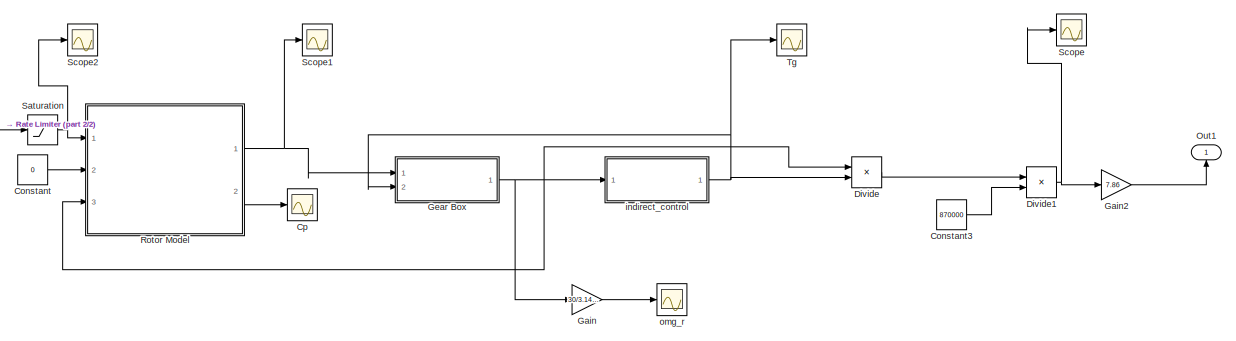
[diagram: Subsystem2 - part 1/2, center side, full height]
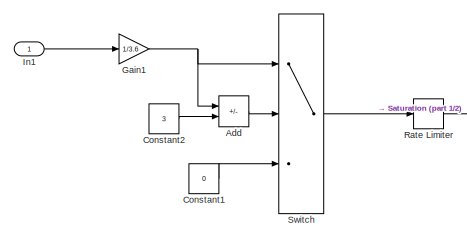
[diagram: Subsystem2 - part 2/2, middle left region]
BLOCK [SubSystem] Subsystem2
  PortSchema = {"entries":[{"content":{"sides":[{"content":{"connectorIds":[]},"type":"ConnectorPlacement.EquallySpacedRectSide","uuid":"dfb2b6ec-63a9-433b-a18e-5e353a5e5aa9"},{"content":{"connectorIds":[],"side":"RIGHT"},"type":"ConnectorPlacement.EquallySpacedRectSide","uuid":"c125b8e7-643b-4944-971c-4a5bf3b5a62f"},{"content":{"connectorIds":["In1"],"side":"TOP"},"type":"ConnectorPlacement.EquallySpacedRectSid...<+384ch>
  Ports = [1, 1]
  RequestExecContextInheritance = off
BLOCK [Sum] Subsystem2/Add
  IconShape = rectangular
  Inputs = +-
  Ports = [2, 1]
BLOCK [Constant] Subsystem2/Constant
  Value = 0
BLOCK [Constant] Subsystem2/Constant1
  Value = 0
BLOCK [Constant] Subsystem2/Constant2
  Value = 3
BLOCK [Constant] Subsystem2/Constant3
  Value = 870000
BLOCK [Scope] Subsystem2/Cp
  Floating = off
  NumInputPorts = 1
  Ports = [1]
  ScopeSpecificationString = Simulink.scopes.TimeScopeBlockCfg('CurrentConfiguration', extmgr.ConfigurationSet(extmgr.Configuration('Core','General UI',true),extmgr.Configuration('Core','Source UI',true),extmgr.Configuration('Sources','WiredSimulink',true,'DataLoggingVariableName','ScopeData2'),extmgr.Configuration('Visuals','Time Domain',true,'SerializedDisplays',{struct('MinYLimReal','0.39353','MaxYLimReal','0.43812','YLabe...<+1409ch>
BLOCK [Product] Subsystem2/Divide
  Inputs = **
  Ports = [2, 1]
BLOCK [Product] Subsystem2/Divide1
  Inputs = */
  Ports = [2, 1]
BLOCK [Gain] Subsystem2/Gain
  Gain = 30/3.14159
BLOCK [Gain] Subsystem2/Gain1
  Gain = 1/3.6
BLOCK [Gain] Subsystem2/Gain2
  Gain = 7.86
BLOCK [SubSystem] Subsystem2/Gear Box
  Ports = [2, 1]
  RequestExecContextInheritance = off
BLOCK [Sum] Subsystem2/Gear Box/Add
  IconShape = rectangular
  Inputs = +-
  Ports = [2, 1]
BLOCK [Gain] Subsystem2/Gear Box/Gain
  Gain = 1/J_t
BLOCK [Gain] Subsystem2/Gear Box/Gain1
  Gain = -K_t/J_t
BLOCK [Integrator] Subsystem2/Gear Box/Integrator
  InitialCondition = 1.5
  Ports = [1, 1]
BLOCK [Sum] Subsystem2/Gear Box/Sum
  Inputs = |++
  Ports = [2, 1]
BLOCK [Inport] Subsystem2/Gear Box/T_a
BLOCK [Inport] Subsystem2/Gear Box/T_g
  Port = 2
BLOCK [Outport] Subsystem2/Gear Box/omg_r
BLOCK [Inport] Subsystem2/In1
BLOCK [Outport] Subsystem2/Out1
  NameLocation = right
  VectorParamsAs1DForOutWhenUnconnected = off
BLOCK [RateLimiter] Subsystem2/Rate Limiter
  FallingSlewLimit = -0.001
  RisingSlewLimit = 0.001
  SampleTimeMode = inherited
BLOCK [SubSystem] Subsystem2/Rotor Model
  Ports = [3, 2]
  RequestExecContextInheritance = off
BLOCK [Fcn] Subsystem2/Rotor Model/1//m
  Expr = 1/(u(1)+0.08*u(2))-0.035/(u(2)^3+1)
BLOCK [Fcn] Subsystem2/Rotor Model/C_p
  Expr = 0.22*(116*u(1)-0.4*u(2)-5)*exp(-12.5*u(1))
BLOCK [Outport] Subsystem2/Rotor Model/Cp
  Port = 2
BLOCK [Product] Subsystem2/Rotor Model/Divide
  Inputs = /*
  Ports = [2, 1]
BLOCK [From] Subsystem2/Rotor Model/From
  GotoTag = lamda
BLOCK [Goto] Subsystem2/Rotor Model/Goto
  GotoTag = lamda
BLOCK [Mux] Subsystem2/Rotor Model/Mux
  DisplayOption = bar
  Inputs = 2
  Ports = [2, 1]
BLOCK [Mux] Subsystem2/Rotor Model/Mux1
  DisplayOption = bar
  Inputs = 2
  Ports = [2, 1]
BLOCK [Mux] Subsystem2/Rotor Model/Mux2
  DisplayOption = bar
  Inputs = 2
  Ports = [2, 1]
BLOCK [Mux] Subsystem2/Rotor Model/Mux3
  DisplayOption = bar
  Inputs = 2
  Ports = [2, 1]
BLOCK [Scope] Subsystem2/Rotor Model/Scope
  Floating = off
  NumInputPorts = 1
  Ports = [1]
  ScopeSpecificationString = Simulink.scopes.TimeScopeBlockCfg('CurrentConfiguration', extmgr.ConfigurationSet(extmgr.Configuration('Core','General UI',true),extmgr.Configuration('Core','Source UI',true),extmgr.Configuration('Sources','WiredSimulink',true,'DataLoggingVariableName','ScopeData1'),extmgr.Configuration('Visuals','Time Domain',true,'SerializedDisplays',{struct('MinYLimReal','-1.875','MaxYLimReal','16.875','YLabelR...<+1419ch>
BLOCK [Scope] Subsystem2/Rotor Model/Scope1
  Floating = off
  NumInputPorts = 1
  Ports = [1]
  ScopeSpecificationString = Simulink.scopes.TimeScopeBlockCfg('CurrentConfiguration', extmgr.ConfigurationSet(extmgr.Configuration('Core','General UI',true),extmgr.Configuration('Core','Source UI',true),extmgr.Configuration('Sources','WiredSimulink',true,'DataLoggingVariableName','ScopeData2'),extmgr.Configuration('Visuals','Time Domain',true,'SerializedDisplays',{struct('MinYLimReal','-1.7685','MaxYLimReal','21.24653','YLab...<+1366ch>
BLOCK [Outport] Subsystem2/Rotor Model/T_a
BLOCK [Fcn] Subsystem2/Rotor Model/Torque
  Expr = 0.5*3.14159*rho*(40^3)*(u(1)^2)*u(2)
BLOCK [Fcn] Subsystem2/Rotor Model/lamda
  Expr = u(2)*40/u(1)
BLOCK [Inport] Subsystem2/Rotor Model/omg_r
  Port = 3
BLOCK [Inport] Subsystem2/Rotor Model/pitch
  Port = 2
BLOCK [Inport] Subsystem2/Rotor Model/wind speed
BLOCK [Saturate] Subsystem2/Saturation
  LowerLimit = 0
  UpperLimit = 25
BLOCK [Scope] Subsystem2/Scope
  Floating = off
  NumInputPorts = 1
  Ports = [1]
  ScopeSpecificationString = Simulink.scopes.TimeScopeBlockCfg('CurrentConfiguration', extmgr.ConfigurationSet(extmgr.Configuration('Core','General UI',true),extmgr.Configuration('Core','Source UI',true),extmgr.Configuration('Sources','WiredSimulink',true,'DataLoggingVariableName','ScopeData9'),extmgr.Configuration('Visuals','Time Domain',true,'SerializedDisplays',{struct('MinYLimReal','-0.19779','MaxYLimReal','1.78015','YLab...<+1416ch>
BLOCK [Scope] Subsystem2/Scope1
  Floating = off
  NumInputPorts = 1
  Ports = [1]
  ScopeSpecificationString = Simulink.scopes.TimeScopeBlockCfg('CurrentConfiguration', extmgr.ConfigurationSet(extmgr.Configuration('Core','General UI',true),extmgr.Configuration('Core','Source UI',true),extmgr.Configuration('Sources','WiredSimulink',true,'DataLoggingVariableName','ScopeData4'),extmgr.Configuration('Visuals','Time Domain',true,'SerializedDisplays',{struct('MinYLimReal','-145648.53188','MaxYLimReal','1309344.5...<+1466ch>
BLOCK [Scope] Subsystem2/Scope2
  Floating = off
  NumInputPorts = 1
  Ports = [1]
  ScopeSpecificationString = Simulink.scopes.TimeScopeBlockCfg('CurrentConfiguration', extmgr.ConfigurationSet(extmgr.Configuration('Core','General UI',true),extmgr.Configuration('Core','Source UI',true),extmgr.Configuration('Sources','WiredSimulink',true,'DataLoggingVariableName','ScopeData5'),extmgr.Configuration('Visuals','Time Domain',true,'SerializedDisplays',{struct('MinYLimReal','-3.125','MaxYLimReal','28.125','YLabelR...<+1527ch>
BLOCK [Switch] Subsystem2/Switch
  Criteria = u2 > Threshold
  InputSameDT = off
  SaturateOnIntegerOverflow = off
BLOCK [Scope] Subsystem2/Tg
  Floating = off
  NumInputPorts = 1
  Ports = [1]
  ScopeSpecificationString = Simulink.scopes.TimeScopeBlockCfg('CurrentConfiguration', extmgr.ConfigurationSet(extmgr.Configuration('Core','General UI',true),extmgr.Configuration('Core','Source UI',true),extmgr.Configuration('Sources','WiredSimulink',true,'DataLoggingVariableName','ScopeData6'),extmgr.Configuration('Visuals','Time Domain',true,'SerializedDisplays',{struct('MinYLimReal','-80155.00924','MaxYLimReal','1528490.65...<+1461ch>
BLOCK [SubSystem] Subsystem2/indirect_control
  Ports = [1, 1]
  RequestExecContextInheritance = off
BLOCK [Fcn] Subsystem2/indirect_control/1
  Expr = u*u
BLOCK [Fcn] Subsystem2/indirect_control/2
  Expr = u^5
BLOCK [Fcn] Subsystem2/indirect_control/3
  Expr = u^3
BLOCK [Constant] Subsystem2/indirect_control/Constant
  Value = 0.5
BLOCK [Constant] Subsystem2/indirect_control/Constant1
  Value = pi
BLOCK [Constant] Subsystem2/indirect_control/Constant2
  Value = rho
BLOCK [Constant] Subsystem2/indirect_control/Constant3
  Value = 40
BLOCK [Constant] Subsystem2/indirect_control/Constant4
  Value = Cp_max
BLOCK [Product] Subsystem2/indirect_control/Divide
  Inputs = ******/
  Ports = [7, 1]
BLOCK [Outport] Subsystem2/indirect_control/T_g
BLOCK [Constant] Subsystem2/indirect_control/lamda_opt
  Value = lambda_opt
BLOCK [Inport] Subsystem2/indirect_control/omg_r
BLOCK [Scope] Subsystem2/omg_r
  Floating = off
  NumInputPorts = 1
  Ports = [1]
  ScopeSpecificationString = Simulink.scopes.TimeScopeBlockCfg('CurrentConfiguration', extmgr.ConfigurationSet(extmgr.Configuration('Core','General UI',true),extmgr.Configuration('Core','Source UI',true),extmgr.Configuration('Sources','WiredSimulink',true,'DataLoggingVariableName','ScopeData7'),extmgr.Configuration('Visuals','Time Domain',true,'SerializedDisplays',{struct('MinYLimReal','-1.79049','MaxYLimReal','16.11445','YLa...<+1417ch>
BLOCK [Goto] diff
  GotoTag = diff
  NameLocation = left
  TagVisibility = global
ANNOTATION (root): 电网数据
ANNOTATION (root): 信号源
ANNOTATION (root): 混合发电系统
ANNOTATION (root): 电池系统
ANNOTATION (root): 负载系统
ANNOTATION (root): House
ANNOTATION (root): signal
ANNOTATION Battery1: 热盐罐（看作电池）
ANNOTATION Battery1: 蓄电池
ANNOTATION Subsystem1: pt 1
ANNOTATION Subsystem1: pt 2
ANNOTATION Subsystem1: pt 3
ANNOTATION Subsystem1: pt 4
ANNOTATION Subsystem1: pt 4a
ANNOTATION Subsystem1: pt 4b
ANNOTATION Subsystem1: pt 5
ANNOTATION Subsystem1: pt 6
LINE Battery1/Add1:1 -> Battery1/Subsystem:1
LINE Battery1/Add:1 -> Battery1/热盐储能（电池）:1
LINE Battery1/Battery_Control/Gain:1 -> Battery1/Battery_Control/P:1
NET Battery1/Battery_Control/In1:1 -> Battery1/Battery_Control/Saturation:1, Battery1/Battery_Control/Switch:1
LINE Battery1/Battery_Control/On:1 -> Battery1/Battery_Control/Switch:2
LINE Battery1/Battery_Control/Saturation:1 -> Battery1/Battery_Control/Switch:3
LINE Battery1/Battery_Control/Switch:1 -> Battery1/Battery_Control/Gain:1
NET Battery1/Battery_Control:1 -> Battery1/Add1:1, Battery1/Scope:1
LINE Battery1/Constant2:1 -> Battery1/Battery_Control:2
NET Battery1/Gain1:1 -> Battery1/Add1:2, Battery1/Scope:2
LINE Battery1/Gain2:1 -> Battery1/Add:1
NET Battery1/Gain3:1 -> Battery1/Gain1:1, Battery1/Gain2:1
NET Battery1/Gain:1 -> Battery1/Add:2, Battery1/Scope1:1
NET Battery1/In1:1 -> Battery1/Out1:1, Battery1/Saturation1:1, Battery1/Saturation:1
LINE Battery1/In2:1 -> Battery1/Gain:1
LINE Battery1/Saturation1:1 -> Battery1/Battery_Control:1
LINE Battery1/Saturation:1 -> Battery1/Gain3:1
LINE Battery1/Subsystem/Add:1 -> Battery1/Subsystem/Gain8:1
LINE Battery1/Subsystem/Constant1:1 -> Battery1/Subsystem/Add:1
LINE Battery1/Subsystem/Constant:1 -> Battery1/Subsystem/Integrator1:2
LINE Battery1/Subsystem/Gain1:1 -> Battery1/Subsystem/Integrator1:1
LINE Battery1/Subsystem/Gain3:1 -> Battery1/Subsystem/Add:2
LINE Battery1/Subsystem/Gain8:1 -> Battery1/Subsystem/Saturation:1
NET Battery1/Subsystem/Gain:1 -> Battery1/Subsystem/Battery_MW:1, Battery1/Subsystem/Gain1:1
LINE Battery1/Subsystem/In1:1 -> Battery1/Subsystem/Gain:1
LINE Battery1/Subsystem/Integrator1:1 -> Battery1/Subsystem/Gain3:1
LINE Battery1/Subsystem/Saturation:1 -> Battery1/Subsystem/Battery_SOC:1
LINE Battery1/Subsystem:1 -> Battery1/Goto15:1
LINE Battery1/Subsystem:2 -> Battery1/Goto17:1
LINE Battery1/热盐储能（电池）/Add:1 -> Battery1/热盐储能（电池）/Gain8:1
LINE Battery1/热盐储能（电池）/Constant1:1 -> Battery1/热盐储能（电池）/Add:1
LINE Battery1/热盐储能（电池）/Constant:1 -> Battery1/热盐储能（电池）/Integrator1:2
LINE Battery1/热盐储能（电池）/Gain1:1 -> Battery1/热盐储能（电池）/Integrator1:1
LINE Battery1/热盐储能（电池）/Gain3:1 -> Battery1/热盐储能（电池）/Add:2
LINE Battery1/热盐储能（电池）/Gain8:1 -> Battery1/热盐储能（电池）/Saturation:1
NET Battery1/热盐储能（电池）/Gain:1 -> Battery1/热盐储能（电池）/Battery_Ah:1, Battery1/热盐储能（电池）/Gain1:1
LINE Battery1/热盐储能（电池）/Integrator1:1 -> Battery1/热盐储能（电池）/Gain3:1
LINE Battery1/热盐储能（电池）/P:1 -> Battery1/热盐储能（电池）/Gain:1
LINE Battery1/热盐储能（电池）/Saturation:1 -> Battery1/热盐储能（电池）/Battery_SOC:1
LINE Battery1/热盐储能（电池）:1 -> Battery1/Goto1:1
LINE Battery1/热盐储能（电池）:2 -> Battery1/Goto2:1
LINE Battery1:1 -> Goto3:1
LINE From1:1 -> House 1:4
LINE From2:1 -> House 1:3
LINE From3:1 -> House 1:2
LINE From4:1 -> PV:1
LINE From5:1 -> Subsystem2:1
LINE From6:1 -> House 1:5
LINE From7:1 -> Battery1:2
LINE From8:1 -> Battery1:1
LINE From9:1 -> House 1:1
LINE From:1 -> Subsystem1:1
LINE House 1/Add:1 -> House 1/Out1:1
LINE House 1/In1:1 -> House 1/Add:1
LINE House 1/PT:1 -> House 1/Add:4
LINE House 1/PV:1 -> House 1/Add:2
LINE House 1/wind:1 -> House 1/Add:3
LINE House 1:1 -> diff:1
LINE PV/Constant:1 -> PV/Divide:2
NET PV/Divide:1 -> PV/Gain:1, PV/Scope:1
LINE PV/Gain:1 -> PV/Out1:1
LINE PV/PS-Simulink Converter1:1 -> PV/Divide:1
LINE PV/input0:1 -> PV/Simulink-PS Converter:1
LINE PV:1 -> Goto2:1
LINE Scenario/Signal Builder1:1 -> Scenario/P_T:1
LINE Scenario/Signal Builder2:1 -> Scenario/PV:1
LINE Scenario/Signal Builder3:1 -> Scenario/wind:1
LINE Scenario/Signal Builder:1 -> Scenario/Load:1
LINE Scenario:1 -> Goto16:1
LINE Scenario:2 -> Goto9:1
LINE Scenario:3 -> Goto8:1
LINE Scenario:4 -> Goto10:1
LINE Scopes/Add:1 -> Scopes/POWER:6
LINE Scopes/From1:1 -> Scopes/Add:3
LINE Scopes/From2:1 -> Scopes/Mux1:1
LINE Scopes/From3:1 -> Scopes/POWER:7
LINE Scopes/From4:1 -> Scopes/Add:2
LINE Scopes/From5:1 -> Scopes/Add:1
LINE Scopes/From7:1 -> Scopes/Mux:2
LINE Scopes/From8:1 -> Scopes/Mux:1
LINE Scopes/From:1 -> Scopes/Mux1:2
LINE Scopes/Load:1 -> Scopes/POWER:1
LINE Scopes/Mux1:1 -> Scopes/Battery condition:2
LINE Scopes/Mux:1 -> Scopes/Battery condition:1
LINE Scopes/power_PT:1 -> Scopes/POWER:3
LINE Scopes/power_PV:1 -> Scopes/POWER:2
LINE Scopes/power_battery1:1 -> Scopes/Mux1:3
LINE Scopes/power_battery:1 -> Scopes/POWER:4
LINE Scopes/power_wind:1 -> Scopes/POWER:5
LINE Subsystem1/AR Throttle Valve1:1 -> Subsystem1/Simulink-PS Converter4:1
LINE Subsystem1/Add1:1 -> Subsystem1/Simulink-PS Converter7:1
LINE Subsystem1/Add:1 -> Subsystem1/Divide:1
LINE Subsystem1/Constant1:1 -> Subsystem1/Add:1
LINE Subsystem1/Constant2:1 -> Subsystem1/Add1:1
LINE Subsystem1/Constant:1 -> Subsystem1/Divide:2
LINE Subsystem1/Controller1/AR_extract_nominal:1 -> Subsystem1/Controller1/Sum3:2
LINE Subsystem1/Controller1/Extraction Controller:1 -> Subsystem1/Controller1/Extraction Lag:1
LINE Subsystem1/Controller1/Extraction Lag:1 -> Subsystem1/Controller1/Sum3:1
LINE Subsystem1/Controller1/L_boiler:1 -> Subsystem1/Controller1/Sum:1
LINE Subsystem1/Controller1/L_boiler_setpoint:1 -> Subsystem1/Controller1/Sum:2
LINE Subsystem1/Controller1/L_preheat:1 -> Subsystem1/Controller1/Sum2:1
LINE Subsystem1/Controller1/L_preheat_setpoint:1 -> Subsystem1/Controller1/Sum2:2
LINE Subsystem1/Controller1/Pump Controller:1 -> Subsystem1/Controller1/Pump Lag:1
LINE Subsystem1/Controller1/Pump Lag:1 -> Subsystem1/Controller1/Sum1:1
LINE Subsystem1/Controller1/Saturation:1 -> Subsystem1/Controller1/mdot:1
LINE Subsystem1/Controller1/Sum1:1 -> Subsystem1/Controller1/Saturation:1
LINE Subsystem1/Controller1/Sum2:1 -> Subsystem1/Controller1/Extraction Controller:1
LINE Subsystem1/Controller1/Sum3:1 -> Subsystem1/Controller1/AR_extract:1
LINE Subsystem1/Controller1/Sum:1 -> Subsystem1/Controller1/Pump Controller:1
LINE Subsystem1/Controller1/mdot_nominal:1 -> Subsystem1/Controller1/Sum1:2
LINE Subsystem1/Controller1:1 -> Subsystem1/Goto3:1
LINE Subsystem1/Controller1:2 -> Subsystem1/Goto6:1
LINE Subsystem1/Divide:1 -> Subsystem1/Gain:1
LINE Subsystem1/Feedwater Preheater1/PS-Simulink Converter:1 -> Subsystem1/Feedwater Preheater1/Level:1
LINE Subsystem1/Feedwater Preheater1:1 -> Subsystem1/Goto9:1
LINE Subsystem1/From3:1 -> Subsystem1/Simulink-PS Converter5:1
LINE Subsystem1/From6:1 -> Subsystem1/Simulink-PS Converter6:1
NET Subsystem1/From8:1 -> Subsystem1/Controller1:1, Subsystem1/L_boiler1:1
LINE Subsystem1/From9:1 -> Subsystem1/Controller1:2
LINE Subsystem1/Gain1:1 -> Subsystem1/Saturation1:1
LINE Subsystem1/Gain2:1 -> Subsystem1/Out2:1
LINE Subsystem1/Gain3:1 -> Subsystem1/Out1:1
NET Subsystem1/Gain:1 -> Subsystem1/Gain2:1, Subsystem1/Gain3:1, Subsystem1/Scope:1
LINE Subsystem1/In1:1 -> Subsystem1/Rate Limiter1:1
LINE Subsystem1/Load1/Convert to MW:1 -> Subsystem1/Load1/Power:1
LINE Subsystem1/Load1/PS-Simulink Converter1:1 -> Subsystem1/Load1/Product:2
LINE Subsystem1/Load1/Product:1 -> Subsystem1/Load1/Convert to MW:1
NET Subsystem1/Load1/Shaft speed:1 -> Subsystem1/Load1/Product:1, Subsystem1/Load1/Simulink-PS Converter:1
LINE Subsystem1/Load1:1 -> Subsystem1/Add:2
LINE Subsystem1/Rate Limiter1:1 -> Subsystem1/Gain1:1
LINE Subsystem1/Saturation1:1 -> Subsystem1/Add1:2
LINE Subsystem1/Steam Boiler1/PS-Simulink Converter:1 -> Subsystem1/Steam Boiler1/Level:1
LINE Subsystem1/Steam Boiler1:1 -> Subsystem1/Goto8:1
LINE Subsystem1/Steam Condenser1/PS-Simulink Converter:1 -> Subsystem1/Steam Condenser1/Condenser Level:1
LINE Subsystem1/Steam Condenser1:1 -> Subsystem1/Condenser Level1:1
LINE Subsystem1/Steam Reheater1/Reheater Heat Flow Sensor/PS-Simulink Converter:1 -> Subsystem1/Steam Reheater1/Reheater Heat Flow Sensor/Goto:1
LINE Subsystem1:1 -> Goto1:1
LINE Subsystem1:2 -> Goto4:1
LINE Subsystem2/Add:1 -> Subsystem2/Switch:2
LINE Subsystem2/Constant1:1 -> Subsystem2/Switch:3
LINE Subsystem2/Constant2:1 -> Subsystem2/Add:2
LINE Subsystem2/Constant3:1 -> Subsystem2/Divide1:2
LINE Subsystem2/Constant:1 -> Subsystem2/Rotor Model:2
NET Subsystem2/Divide1:1 -> Subsystem2/Gain2:1, Subsystem2/Scope:1
LINE Subsystem2/Divide:1 -> Subsystem2/Divide1:1
NET Subsystem2/Gain1:1 -> Subsystem2/Add:1, Subsystem2/Switch:1
LINE Subsystem2/Gain2:1 -> Subsystem2/Out1:1
LINE Subsystem2/Gain:1 -> Subsystem2/omg_r:1
LINE Subsystem2/Gear Box/Add:1 -> Subsystem2/Gear Box/Gain:1
LINE Subsystem2/Gear Box/Gain1:1 -> Subsystem2/Gear Box/Sum:2
LINE Subsystem2/Gear Box/Gain:1 -> Subsystem2/Gear Box/Sum:1
NET Subsystem2/Gear Box/Integrator:1 -> Subsystem2/Gear Box/Gain1:1, Subsystem2/Gear Box/omg_r:1
LINE Subsystem2/Gear Box/Sum:1 -> Subsystem2/Gear Box/Integrator:1
LINE Subsystem2/Gear Box/T_a:1 -> Subsystem2/Gear Box/Add:1
LINE Subsystem2/Gear Box/T_g:1 -> Subsystem2/Gear Box/Add:2
NET Subsystem2/Gear Box:1 -> Subsystem2/Divide:1, Subsystem2/Gain:1, Subsystem2/Rotor Model:3, Subsystem2/indirect_control:1
LINE Subsystem2/In1:1 -> Subsystem2/Gain1:1
LINE Subsystem2/Rate Limiter:1 -> Subsystem2/Saturation:1
LINE Subsystem2/Rotor Model/1//m:1 -> Subsystem2/Rotor Model/Mux3:1
NET Subsystem2/Rotor Model/C_p:1 -> Subsystem2/Rotor Model/Cp:1, Subsystem2/Rotor Model/Divide:2
LINE Subsystem2/Rotor Model/Divide:1 -> Subsystem2/Rotor Model/Mux1:2
NET Subsystem2/Rotor Model/From:1 -> Subsystem2/Rotor Model/Divide:1, Subsystem2/Rotor Model/Mux2:1, Subsystem2/Rotor Model/Scope1:1
LINE Subsystem2/Rotor Model/Mux1:1 -> Subsystem2/Rotor Model/Torque:1
LINE Subsystem2/Rotor Model/Mux2:1 -> Subsystem2/Rotor Model/1//m:1
LINE Subsystem2/Rotor Model/Mux3:1 -> Subsystem2/Rotor Model/C_p:1
NET Subsystem2/Rotor Model/Mux:1 -> Subsystem2/Rotor Model/Scope:1, Subsystem2/Rotor Model/lamda:1
LINE Subsystem2/Rotor Model/Torque:1 -> Subsystem2/Rotor Model/T_a:1
LINE Subsystem2/Rotor Model/lamda:1 -> Subsystem2/Rotor Model/Goto:1
LINE Subsystem2/Rotor Model/omg_r:1 -> Subsystem2/Rotor Model/Mux:2
NET Subsystem2/Rotor Model/pitch:1 -> Subsystem2/Rotor Model/Mux2:2, Subsystem2/Rotor Model/Mux3:2
NET Subsystem2/Rotor Model/wind speed:1 -> Subsystem2/Rotor Model/Mux1:1, Subsystem2/Rotor Model/Mux:1
NET Subsystem2/Rotor Model:1 -> Subsystem2/Gear Box:1, Subsystem2/Scope1:1
LINE Subsystem2/Rotor Model:2 -> Subsystem2/Cp:1
NET Subsystem2/Saturation:1 -> Subsystem2/Rotor Model:1, Subsystem2/Scope2:1
LINE Subsystem2/Switch:1 -> Subsystem2/Rate Limiter:1
LINE Subsystem2/indirect_control/1:1 -> Subsystem2/indirect_control/Divide:1
LINE Subsystem2/indirect_control/2:1 -> Subsystem2/indirect_control/Divide:5
LINE Subsystem2/indirect_control/3:1 -> Subsystem2/indirect_control/Divide:7
LINE Subsystem2/indirect_control/Constant1:1 -> Subsystem2/indirect_control/Divide:3
LINE Subsystem2/indirect_control/Constant2:1 -> Subsystem2/indirect_control/Divide:4
LINE Subsystem2/indirect_control/Constant3:1 -> Subsystem2/indirect_control/2:1
LINE Subsystem2/indirect_control/Constant4:1 -> Subsystem2/indirect_control/Divide:6
LINE Subsystem2/indirect_control/Constant:1 -> Subsystem2/indirect_control/Divide:2
LINE Subsystem2/indirect_control/Divide:1 -> Subsystem2/indirect_control/T_g:1
LINE Subsystem2/indirect_control/lamda_opt:1 -> Subsystem2/indirect_control/3:1
LINE Subsystem2/indirect_control/omg_r:1 -> Subsystem2/indirect_control/1:1
NET Subsystem2/indirect_control:1 -> Subsystem2/Divide:2, Subsystem2/Gear Box:2, Subsystem2/Tg:1
LINE Subsystem2:1 -> Goto7:1
PNET net1: PV/Current Sensor:LConn1 -- PV/Diode1:RConn1 -- PV/Diode2:RConn1 -- PV/Diode3:RConn1 -- PV/Solver Configuration:RConn1 -- PV/Voltage Sensor:LConn1
PLINE PV/Current Sensor:RConn1 -- PV/PS-Simulink Converter1:LConn1
PLINE PV/Current Sensor:RConn2 -- PV/Variable Resistor:LConn2
PLINE PV/Diode1:LConn1 -- PV/Module1:LConn2
PLINE PV/Diode2:LConn1 -- PV/Module2:LConn2
PLINE PV/Diode3:LConn1 -- PV/Module3:LConn2
PNET net2: PV/Electrical Reference:LConn1 -- PV/Module1:RConn1 -- PV/Module2:RConn1 -- PV/Module3:RConn1 -- PV/Variable Resistor:RConn1 -- PV/Voltage Sensor:RConn2
PNET net3: PV/Module1/Diode2:LConn1 -- PV/Module1/Diode3:RConn1 -- PV/Module1/Solar Cell1:LConn2 -- PV/Module1/Solar Cell2:RConn1
PNET net4: PV/Module1/Diode2:RConn1 -- PV/Module1/Solar Cell2:LConn2 -- PV/Module1/positive:RConn1
PNET net5: PV/Module1/Diode3:LConn1 -- PV/Module1/Diode4:RConn1 -- PV/Module1/Solar Cell1:RConn1 -- PV/Module1/Solar Cell:LConn2
PNET net6: PV/Module1/Diode4:LConn1 -- PV/Module1/Solar Cell:RConn1 -- PV/Module1/negative:RConn1
PNET net7: PV/Module1/Solar Cell1:LConn1 -- PV/Module1/Solar Cell2:LConn1 -- PV/Module1/Solar Cell:LConn1 -- PV/Module1/constant:RConn1
PNET net8: PV/Module1:LConn1 -- PV/Module2:LConn1 -- PV/Module3:LConn1 -- PV/Simulink-PS Converter:RConn1
PNET net9: PV/Module2/Diode2:LConn1 -- PV/Module2/Diode3:RConn1 -- PV/Module2/Solar Cell1:LConn2 -- PV/Module2/Solar Cell2:RConn1
PNET net10: PV/Module2/Diode2:RConn1 -- PV/Module2/Solar Cell2:LConn2 -- PV/Module2/positive:RConn1
PNET net11: PV/Module2/Diode3:LConn1 -- PV/Module2/Diode4:RConn1 -- PV/Module2/Solar Cell1:RConn1 -- PV/Module2/Solar Cell:LConn2
PNET net12: PV/Module2/Diode4:LConn1 -- PV/Module2/Solar Cell:RConn1 -- PV/Module2/negative:RConn1
PNET net13: PV/Module2/Solar Cell1:LConn1 -- PV/Module2/Solar Cell2:LConn1 -- PV/Module2/Solar Cell:LConn1 -- PV/Module2/constant:RConn1
PNET net14: PV/Module3/Diode2:LConn1 -- PV/Module3/Diode3:RConn1 -- PV/Module3/Solar Cell1:LConn2 -- PV/Module3/Solar Cell2:RConn1
PNET net15: PV/Module3/Diode2:RConn1 -- PV/Module3/Solar Cell2:LConn2 -- PV/Module3/positive:RConn1
PNET net16: PV/Module3/Diode3:LConn1 -- PV/Module3/Diode4:RConn1 -- PV/Module3/Solar Cell1:RConn1 -- PV/Module3/Solar Cell:LConn2
PNET net17: PV/Module3/Diode4:LConn1 -- PV/Module3/Solar Cell:RConn1 -- PV/Module3/negative:RConn1
PNET net18: PV/Module3/Solar Cell1:LConn1 -- PV/Module3/Solar Cell2:LConn1 -- PV/Module3/Solar Cell:LConn1 -- PV/Module3/constant:RConn1
PLINE PV/PS Constant1:RConn1 -- PV/Variable Resistor:LConn1
PNET net19: Subsystem1/Check Valve1/A:RConn1 -- Subsystem1/Check Valve1/Pressure & Internal Energy Sensor (2P):LConn1 -- Subsystem1/Check Valve1/Variable Local Restriction (2P):LConn1
PNET net20: Subsystem1/Check Valve1/B:RConn1 -- Subsystem1/Check Valve1/Pressure & Internal Energy Sensor (2P):RConn1 -- Subsystem1/Check Valve1/Variable Local Restriction (2P):RConn1
PLINE Subsystem1/Check Valve1/Pressure & Internal Energy Sensor (2P):RConn2 -- Subsystem1/Check Valve1/Valve Gain:LConn1
PLINE Subsystem1/Check Valve1/Valve Gain/AR:RConn1 -- Subsystem1/Check Valve1/Valve Gain/PS Add:RConn1
PLINE Subsystem1/Check Valve1/Valve Gain/P:RConn1 -- Subsystem1/Check Valve1/Valve Gain/PS Subtract:LConn1
PLINE Subsystem1/Check Valve1/Valve Gain/PS Add:LConn1 -- Subsystem1/Check Valve1/Valve Gain/PS Gain1:RConn1
PLINE Subsystem1/Check Valve1/Valve Gain/PS Add:LConn2 -- Subsystem1/Check Valve1/Valve Gain/PS Constant1:RConn1
PLINE Subsystem1/Check Valve1/Valve Gain/PS Constant:RConn1 -- Subsystem1/Check Valve1/Valve Gain/PS Subtract:LConn2
PLINE Subsystem1/Check Valve1/Valve Gain/PS Gain1:LConn1 -- Subsystem1/Check Valve1/Valve Gain/tanh:RConn1
PLINE Subsystem1/Check Valve1/Valve Gain/PS Gain:LConn1 -- Subsystem1/Check Valve1/Valve Gain/PS Subtract:RConn1
PLINE Subsystem1/Check Valve1/Valve Gain/PS Gain:RConn1 -- Subsystem1/Check Valve1/Valve Gain/tanh:LConn1
PLINE Subsystem1/Check Valve1/Valve Gain:RConn1 -- Subsystem1/Check Valve1/Variable Local Restriction (2P):LConn2
PNET net21: Subsystem1/Check Valve1:LConn1 -- Subsystem1/High-Pressure Turbine1:RConn1 -- Subsystem1/Steam Reheater1:LConn1
PNET net22: Subsystem1/Check Valve1:RConn1 -- Subsystem1/Feedwater Preheater1:LConn1 -- Subsystem1/Solver Configuration1:RConn1
PLINE Subsystem1/Controlled Mass Flow Rate Source (TL)1:LConn1 -- Subsystem1/Reservoir (TL)3:LConn1
PLINE Subsystem1/Controlled Mass Flow Rate Source (TL)1:LConn2 -- Subsystem1/Simulink-PS Converter7:RConn1
PNET net23: Subsystem1/Controlled Mass Flow Rate Source (TL)1:RConn1 -- Subsystem1/Steam Reheater1:RConn2 -- Subsystem1/Steam superheater1:LConn2 -- Subsystem1/Thermal Liquid Settings (TL)1:RConn1
PLINE Subsystem1/Extraction Valve1:LConn1 -- Subsystem1/Feedwater Preheater1:RConn1
PLINE Subsystem1/Extraction Valve1:LConn2 -- Subsystem1/Simulink-PS Converter6:RConn1
PLINE Subsystem1/Extraction Valve1:RConn1 -- Subsystem1/Steam Condenser1:RConn1
PLINE Subsystem1/Feedwater Preheater1/Condensate Out:RConn1 -- Subsystem1/Feedwater Preheater1/Steam Condenser:LConn2
PLINE Subsystem1/Feedwater Preheater1/Convection Steam Side:LConn1 -- Subsystem1/Feedwater Preheater1/Steam Condenser:RConn2
PLINE Subsystem1/Feedwater Preheater1/Convection Steam Side:RConn1 -- Subsystem1/Feedwater Preheater1/Preheater Heat Flow Sensor:LConn1
PLINE Subsystem1/Feedwater Preheater1/Feedwater Pipe:LConn1 -- Subsystem1/Feedwater Preheater1/Water In:RConn1
PLINE Subsystem1/Feedwater Preheater1/Feedwater Pipe:LConn2 -- Subsystem1/Feedwater Preheater1/Preheater Heat Flow Sensor:RConn1
PLINE Subsystem1/Feedwater Preheater1/Feedwater Pipe:RConn1 -- Subsystem1/Feedwater Preheater1/Water Out:RConn1
PLINE Subsystem1/Feedwater Preheater1/PS-Simulink Converter:LConn1 -- Subsystem1/Feedwater Preheater1/Steam Condenser:RConn1
PLINE Subsystem1/Feedwater Preheater1/Preheater Heat Flow Sensor/A:RConn1 -- Subsystem1/Feedwater Preheater1/Preheater Heat Flow Sensor/Heat Flow Rate Sensor:LConn1
PLINE Subsystem1/Feedwater Preheater1/Preheater Heat Flow Sensor/B:RConn1 -- Subsystem1/Feedwater Preheater1/Preheater Heat Flow Sensor/Heat Flow Rate Sensor:RConn2
PLINE Subsystem1/Feedwater Preheater1/Steam Condenser:LConn1 -- Subsystem1/Feedwater Preheater1/Steam In:RConn1
PNET net24: Subsystem1/Feedwater Preheater1:LConn2 -- Subsystem1/Steam Properties1:RConn1 -- Subsystem1/Steam preheater1:RConn1
PLINE Subsystem1/Feedwater Preheater1:RConn2 -- Subsystem1/Pump1:RConn1
PLINE Subsystem1/High-Pressure Turbine1:LConn1 -- Subsystem1/Throttle Valve1:RConn1
PNET net25: Subsystem1/High-Pressure Turbine1:LConn2 -- Subsystem1/Load1:LConn1 -- Subsystem1/Low-Pressure Turbine1:LConn2
PLINE Subsystem1/High-Pressure Turbine1:RConn2 -- Subsystem1/Mechanical Rotational Reference2:LConn1
PLINE Subsystem1/Load1/Ideal Angular Velocity Source:LConn1 -- Subsystem1/Load1/Ideal Torque Sensor:RConn1
PLINE Subsystem1/Load1/Ideal Angular Velocity Source:RConn1 -- Subsystem1/Load1/Simulink-PS Converter:RConn1
PLINE Subsystem1/Load1/Ideal Angular Velocity Source:RConn2 -- Subsystem1/Load1/Mechanical Rotational Reference:LConn1
PLINE Subsystem1/Load1/Ideal Torque Sensor:LConn1 -- Subsystem1/Load1/R:RConn1
PLINE Subsystem1/Load1/Ideal Torque Sensor:RConn2 -- Subsystem1/Load1/PS-Simulink Converter1:LConn1
PLINE Subsystem1/Low-Pressure Turbine1:LConn1 -- Subsystem1/Steam Reheater1:RConn1
PLINE Subsystem1/Low-Pressure Turbine1:RConn1 -- Subsystem1/Steam Condenser1:RConn2
PLINE Subsystem1/Low-Pressure Turbine1:RConn2 -- Subsystem1/Mechanical Rotational Reference3:LConn1
PLINE Subsystem1/Pump1:LConn1 -- Subsystem1/Steam Condenser1:RConn3
PLINE Subsystem1/Pump1:LConn2 -- Subsystem1/Simulink-PS Converter5:RConn1
PLINE Subsystem1/Reservoir (TL)2:LConn1 -- Subsystem1/Steam preheater1:LConn2
PLINE Subsystem1/Simulink-PS Converter4:RConn1 -- Subsystem1/Throttle Valve1:LConn2
PLINE Subsystem1/Steam Boiler1/Conductive Heat Transfer:LConn1 -- Subsystem1/Steam Boiler1/Pipe (TL):LConn2
PLINE Subsystem1/Steam Boiler1/Conductive Heat Transfer:RConn1 -- Subsystem1/Steam Boiler1/Steam Drum:RConn2
PLINE Subsystem1/Steam Boiler1/PS-Simulink Converter:LConn1 -- Subsystem1/Steam Boiler1/Steam Drum:RConn1
PLINE Subsystem1/Steam Boiler1/Pipe (TL):LConn1 -- Subsystem1/Steam Boiler1/salt in:RConn1
PLINE Subsystem1/Steam Boiler1/Pipe (TL):RConn1 -- Subsystem1/Steam Boiler1/salt out:RConn1
PLINE Subsystem1/Steam Boiler1/Steam Drum:LConn1 -- Subsystem1/Steam Boiler1/Steam:RConn1
PLINE Subsystem1/Steam Boiler1/Steam Drum:LConn2 -- Subsystem1/Steam Boiler1/Water:RConn1
PLINE Subsystem1/Steam Boiler1:LConn1 -- Subsystem1/Steam superheater1:LConn1
PLINE Subsystem1/Steam Boiler1:LConn2 -- Subsystem1/Steam preheater1:LConn3
PNET net26: Subsystem1/Steam Boiler1:LConn3 -- Subsystem1/Steam Reheater1:LConn2 -- Subsystem1/Steam superheater1:LConn3
PLINE Subsystem1/Steam Boiler1:LConn4 -- Subsystem1/Steam preheater1:LConn1
PLINE Subsystem1/Steam Condenser1/Condenser Heat Flow Sensor/A:RConn1 -- Subsystem1/Steam Condenser1/Condenser Heat Flow Sensor/Heat Flow Rate Sensor:LConn1
PLINE Subsystem1/Steam Condenser1/Condenser Heat Flow Sensor/B:RConn1 -- Subsystem1/Steam Condenser1/Condenser Heat Flow Sensor/Heat Flow Rate Sensor:RConn2
PLINE Subsystem1/Steam Condenser1/Condenser Heat Flow Sensor:LConn1 -- Subsystem1/Steam Condenser1/Overall Thermal Resistance:LConn1
PLINE Subsystem1/Steam Condenser1/Condenser Heat Flow Sensor:RConn1 -- Subsystem1/Steam Condenser1/Coolant Temperature:LConn1
PNET net27: Subsystem1/Steam Condenser1/Condenser:LConn1 -- Subsystem1/Steam Condenser1/Flow Resistance (2P)1:RConn1 -- Subsystem1/Steam Condenser1/Flow Resistance (2P):RConn1
PLINE Subsystem1/Steam Condenser1/Condenser:LConn2 -- Subsystem1/Steam Condenser1/Water:RConn1
PLINE Subsystem1/Steam Condenser1/Condenser:RConn1 -- Subsystem1/Steam Condenser1/PS-Simulink Converter:LConn1
PLINE Subsystem1/Steam Condenser1/Condenser:RConn2 -- Subsystem1/Steam Condenser1/Overall Thermal Resistance:RConn1
PLINE Subsystem1/Steam Condenser1/Flow Resistance (2P)1:LConn1 -- Subsystem1/Steam Condenser1/Steam Extr:RConn1
PLINE Subsystem1/Steam Condenser1/Flow Resistance (2P):LConn1 -- Subsystem1/Steam Condenser1/Steam:RConn1
PLINE Subsystem1/Steam Reheater1/Furnace Convection:LConn1 -- Subsystem1/Steam Reheater1/Pipe (TL):LConn2
PLINE Subsystem1/Steam Reheater1/Furnace Convection:RConn1 -- Subsystem1/Steam Reheater1/Reheater Heat Flow Sensor:LConn1
PLINE Subsystem1/Steam Reheater1/Pipe (TL):LConn1 -- Subsystem1/Steam Reheater1/salt in:RConn1
PLINE Subsystem1/Steam Reheater1/Pipe (TL):RConn1 -- Subsystem1/Steam Reheater1/salt out:RConn1
PLINE Subsystem1/Steam Reheater1/Reheater Heat Flow Sensor/A:RConn1 -- Subsystem1/Steam Reheater1/Reheater Heat Flow Sensor/Heat Flow Rate Sensor:LConn1
PLINE Subsystem1/Steam Reheater1/Reheater Heat Flow Sensor/B:RConn1 -- Subsystem1/Steam Reheater1/Reheater Heat Flow Sensor/Heat Flow Rate Sensor:RConn2
PLINE Subsystem1/Steam Reheater1/Reheater Heat Flow Sensor/Heat Flow Rate Sensor:RConn1 -- Subsystem1/Steam Reheater1/Reheater Heat Flow Sensor/PS-Simulink Converter:LConn1
PLINE Subsystem1/Steam Reheater1/Reheater Heat Flow Sensor:RConn1 -- Subsystem1/Steam Reheater1/Reheater:LConn2
PLINE Subsystem1/Steam Reheater1/Reheater:LConn1 -- Subsystem1/Steam Reheater1/steam In:RConn1
PLINE Subsystem1/Steam Reheater1/Reheater:RConn1 -- Subsystem1/Steam Reheater1/steam Out:RConn1
PLINE Subsystem1/Steam preheater1/Conductive Heat Transfer:LConn1 -- Subsystem1/Steam preheater1/Pipe (TL):LConn2
PLINE Subsystem1/Steam preheater1/Conductive Heat Transfer:RConn1 -- Subsystem1/Steam preheater1/Feedwater Pipe1:LConn2
PLINE Subsystem1/Steam preheater1/Feedwater Pipe1:LConn1 -- Subsystem1/Steam preheater1/Water in:RConn1
PLINE Subsystem1/Steam preheater1/Feedwater Pipe1:RConn1 -- Subsystem1/Steam preheater1/Water out:RConn1
PLINE Subsystem1/Steam preheater1/Pipe (TL):LConn1 -- Subsystem1/Steam preheater1/Salt in:RConn1
PLINE Subsystem1/Steam preheater1/Pipe (TL):RConn1 -- Subsystem1/Steam preheater1/Salt out:RConn1
PLINE Subsystem1/Steam superheater1/Conductive Heat Transfer:LConn1 -- Subsystem1/Steam superheater1/Pipe (TL):LConn2
PLINE Subsystem1/Steam superheater1/Conductive Heat Transfer:RConn1 -- Subsystem1/Steam superheater1/Superheater:LConn2
PLINE Subsystem1/Steam superheater1/Pipe (TL):LConn1 -- Subsystem1/Steam superheater1/salt in:RConn1
PLINE Subsystem1/Steam superheater1/Pipe (TL):RConn1 -- Subsystem1/Steam superheater1/salt out:RConn1
PLINE Subsystem1/Steam superheater1/Steam in :RConn1 -- Subsystem1/Steam superheater1/Superheater:LConn1
PLINE Subsystem1/Steam superheater1/Steam out:RConn1 -- Subsystem1/Steam superheater1/Superheater:RConn1
PLINE Subsystem1/Steam superheater1:RConn1 -- Subsystem1/Throttle Valve1:LConn1
note: NET lines group one-source signal fan-out (src -> all destinations, sorted); 1:1 wires keep LINE; PNET lines group multi-terminal physical nets as a canonical sorted terminal list (undirected conserving connections); 2-terminal nets keep the pairwise PLINE form
